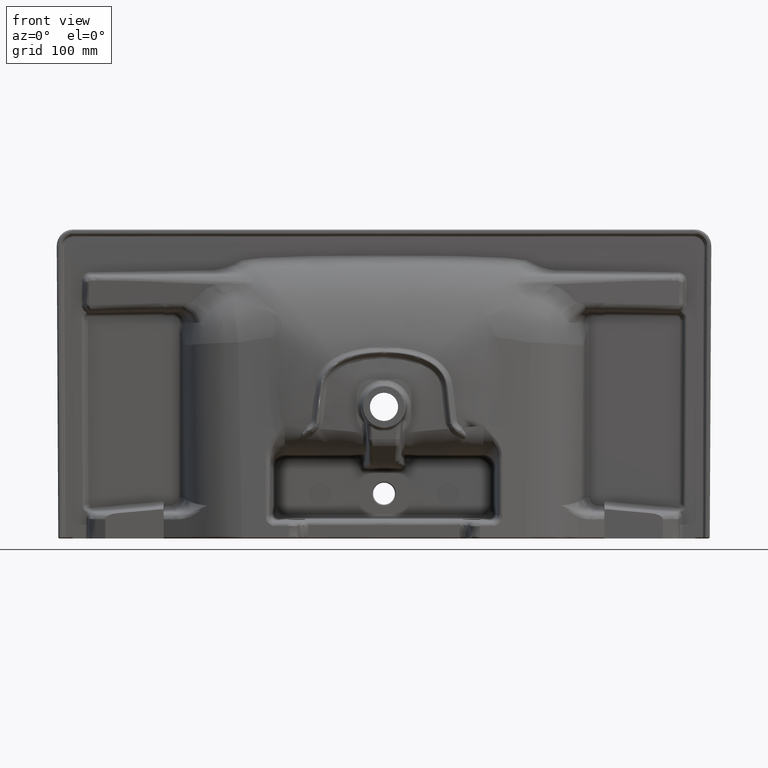
[diagram: clean part render]
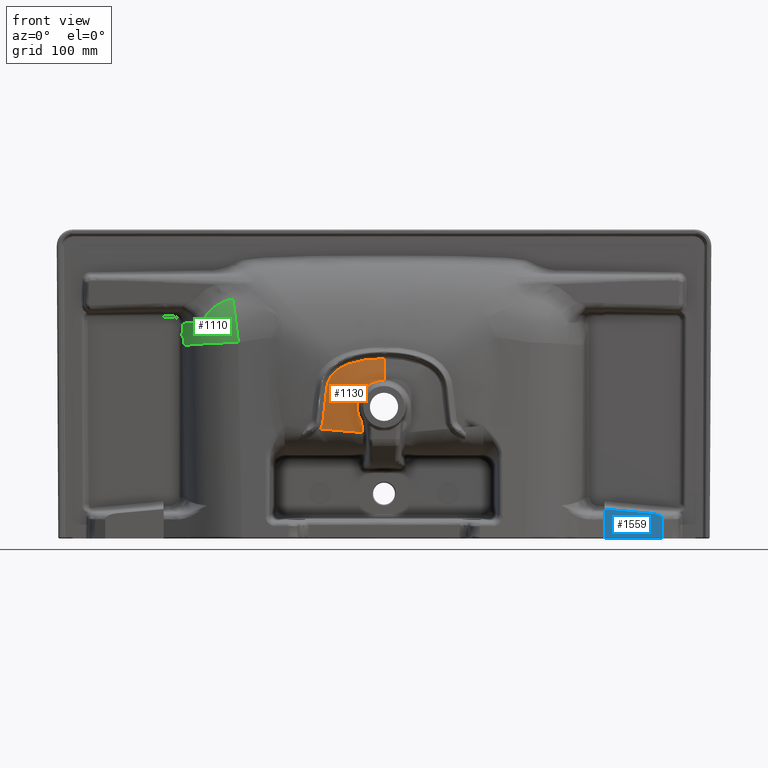
[diagram: same view with three faces highlighted in distinct colors, each labeled with its STEP entity id]
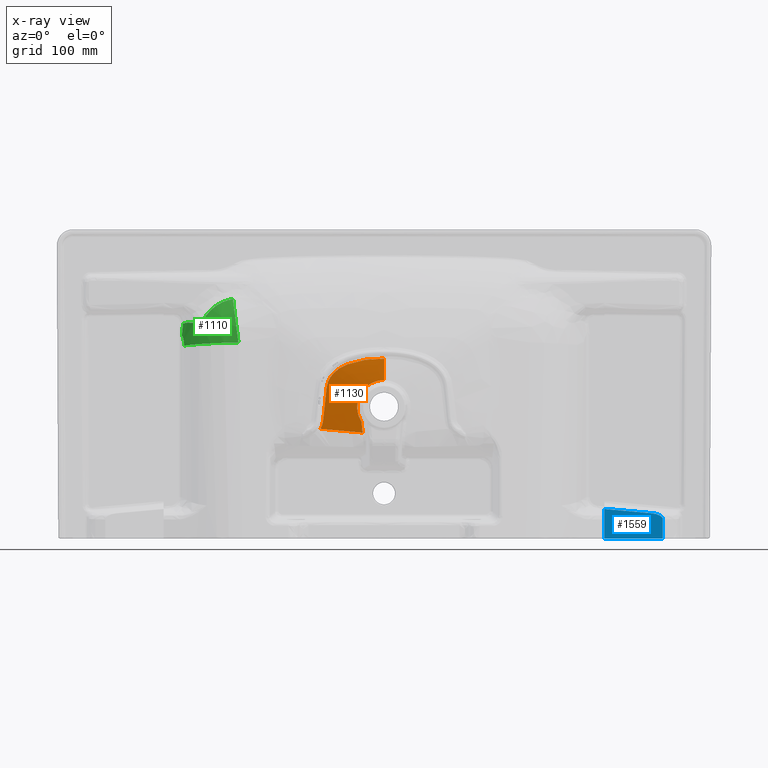
[diagram: x-ray of the same camera — body ghosted, the three highlighted faces saturated]
A machine part, front view with three faces highlighted in distinct colors.
The next image is the same camera in x-ray (body ghosted, the three faces saturated) — at least one of them is partly hidden behind the body in this view.
Their STEP definitions:

[orange] entity #1130 — the highlighted face is a freeform B-spline surface patch.
#120=B_SPLINE_SURFACE_WITH_KNOTS('',3,3,((#23210,#23211,#23212,#23213,#23214,
#23215,#23216,#23217,#23218,#23219,#23220,#23221,#23222),(#23223,#23224,
#23225,#23226,#23227,#23228,#23229,#23230,#23231,#23232,#23233,#23234,#23235),
(#23236,#23237,#23238,#23239,#23240,#23241,#23242,#23243,#23244,#23245,
#23246,#23247,#23248),(#23249,#23250,#23251,#23252,#23253,#23254,#23255,
#23256,#23257,#23258,#23259,#23260,#23261),(#23262,#23263,#23264,#23265,
#23266,#23267,#23268,#23269,#23270,#23271,#23272,#23273,#23274),(#23275,
#23276,#23277,#23278,#23279,#23280,#23281,#23282,#23283,#23284,#23285,#23286,
#23287),(#23288,#23289,#23290,#23291,#23292,#23293,#23294,#23295,#23296,
#23297,#23298,#23299,#23300),(#23301,#23302,#23303,#23304,#23305,#23306,
#23307,#23308,#23309,#23310,#23311,#23312,#23313),(#23314,#23315,#23316,
#23317,#23318,#23319,#23320,#23321,#23322,#23323,#23324,#23325,#23326),
(#23327,#23328,#23329,#23330,#23331,#23332,#23333,#23334,#23335,#23336,
#23337,#23338,#23339),(#23340,#23341,#23342,#23343,#23344,#23345,#23346,
#23347,#23348,#23349,#23350,#23351,#23352),(#23353,#23354,#23355,#23356,
#23357,#23358,#23359,#23360,#23361,#23362,#23363,#23364,#23365),(#23366,
#23367,#23368,#23369,#23370,#23371,#23372,#23373,#23374,#23375,#23376,#23377,
#23378),(#23379,#23380,#23381,#23382,#23383,#23384,#23385,#23386,#23387,
#23388,#23389,#23390,#23391),(#23392,#23393,#23394,#23395,#23396,#23397,
#23398,#23399,#23400,#23401,#23402,#23403,#23404),(#23405,#23406,#23407,
#23408,#23409,#23410,#23411,#23412,#23413,#23414,#23415,#23416,#23417),
(#23418,#23419,#23420,#23421,#23422,#23423,#23424,#23425,#23426,#23427,
#23428,#23429,#23430),(#23431,#23432,#23433,#23434,#23435,#23436,#23437,
#23438,#23439,#23440,#23441,#23442,#23443),(#23444,#23445,#23446,#23447,
#23448,#23449,#23450,#23451,#23452,#23453,#23454,#23455,#23456),(#23457,
#23458,#23459,#23460,#23461,#23462,#23463,#23464,#23465,#23466,#23467,#23468,
#23469),(#23470,#23471,#23472,#23473,#23474,#23475,#23476,#23477,#23478,
#23479,#23480,#23481,#23482),(#23483,#23484,#23485,#23486,#23487,#23488,
#23489,#23490,#23491,#23492,#23493,#23494,#23495),(#23496,#23497,#23498,
#23499,#23500,#23501,#23502,#23503,#23504,#23505,#23506,#23507,#23508),
(#23509,#23510,#23511,#23512,#23513,#23514,#23515,#23516,#23517,#23518,
#23519,#23520,#23521),(#23522,#23523,#23524,#23525,#23526,#23527,#23528,
#23529,#23530,#23531,#23532,#23533,#23534),(#23535,#23536,#23537,#23538,
#23539,#23540,#23541,#23542,#23543,#23544,#23545,#23546,#23547),(#23548,
#23549,#23550,#23551,#23552,#23553,#23554,#23555,#23556,#23557,#23558,#23559,
#23560),(#23561,#23562,#23563,#23564,#23565,#23566,#23567,#23568,#23569,
#23570,#23571,#23572,#23573),(#23574,#23575,#23576,#23577,#23578,#23579,
#23580,#23581,#23582,#23583,#23584,#23585,#23586),(#23587,#23588,#23589,
#23590,#23591,#23592,#23593,#23594,#23595,#23596,#23597,#23598,#23599),
(#23600,#23601,#23602,#23603,#23604,#23605,#23606,#23607,#23608,#23609,
#23610,#23611,#23612),(#23613,#23614,#23615,#23616,#23617,#23618,#23619,
#23620,#23621,#23622,#23623,#23624,#23625),(#23626,#23627,#23628,#23629,
#23630,#23631,#23632,#23633,#23634,#23635,#23636,#23637,#23638),(#23639,
#23640,#23641,#23642,#23643,#23644,#23645,#23646,#23647,#23648,#23649,#23650,
#23651),(#23652,#23653,#23654,#23655,#23656,#23657,#23658,#23659,#23660,
#23661,#23662,#23663,#23664),(#23665,#23666,#23667,#23668,#23669,#23670,
#23671,#23672,#23673,#23674,#23675,#23676,#23677),(#23678,#23679,#23680,
#23681,#23682,#23683,#23684,#23685,#23686,#23687,#23688,#23689,#23690),
(#23691,#23692,#23693,#23694,#23695,#23696,#23697,#23698,#23699,#23700,
#23701,#23702,#23703),(#23704,#23705,#23706,#23707,#23708,#23709,#23710,
#23711,#23712,#23713,#23714,#23715,#23716),(#23717,#23718,#23719,#23720,
#23721,#23722,#23723,#23724,#23725,#23726,#23727,#23728,#23729),(#23730,
#23731,#23732,#23733,#23734,#23735,#23736,#23737,#23738,#23739,#23740,#23741,
#23742),(#23743,#23744,#23745,#23746,#23747,#23748,#23749,#23750,#23751,
#23752,#23753,#23754,#23755),(#23756,#23757,#23758,#23759,#23760,#23761,
#23762,#23763,#23764,#23765,#23766,#23767,#23768),(#23769,#23770,#23771,
#23772,#23773,#23774,#23775,#23776,#23777,#23778,#23779,#23780,#23781),
(#23782,#23783,#23784,#23785,#23786,#23787,#23788,#23789,#23790,#23791,
#23792,#23793,#23794),(#23795,#23796,#23797,#23798,#23799,#23800,#23801,
#23802,#23803,#23804,#23805,#23806,#23807),(#23808,#23809,#23810,#23811,
#23812,#23813,#23814,#23815,#23816,#23817,#23818,#23819,#23820),(#23821,
#23822,#23823,#23824,#23825,#23826,#23827,#23828,#23829,#23830,#23831,#23832,
#23833),(#23834,#23835,#23836,#23837,#23838,#23839,#23840,#23841,#23842,
#23843,#23844,#23845,#23846),(#23847,#23848,#23849,#23850,#23851,#23852,
#23853,#23854,#23855,#23856,#23857,#23858,#23859),(#23860,#23861,#23862,
#23863,#23864,#23865,#23866,#23867,#23868,#23869,#23870,#23871,#23872),
(#23873,#23874,#23875,#23876,#23877,#23878,#23879,#23880,#23881,#23882,
#23883,#23884,#23885),(#23886,#23887,#23888,#23889,#23890,#23891,#23892,
#23893,#23894,#23895,#23896,#23897,#23898),(#23899,#23900,#23901,#23902,
#23903,#23904,#23905,#23906,#23907,#23908,#23909,#23910,#23911),(#23912,
#23913,#23914,#23915,#23916,#23917,#23918,#23919,#23920,#23921,#23922,#23923,
#23924),(#23925,#23926,#23927,#23928,#23929,#23930,#23931,#23932,#23933,
#23934,#23935,#23936,#23937),(#23938,#23939,#23940,#23941,#23942,#23943,
#23944,#23945,#23946,#23947,#23948,#23949,#23950),(#23951,#23952,#23953,
#23954,#23955,#23956,#23957,#23958,#23959,#23960,#23961,#23962,#23963),
(#23964,#23965,#23966,#23967,#23968,#23969,#23970,#23971,#23972,#23973,
#23974,#23975,#23976),(#23977,#23978,#23979,#23980,#23981,#23982,#23983,
#23984,#23985,#23986,#23987,#23988,#23989),(#23990,#23991,#23992,#23993,
#23994,#23995,#23996,#23997,#23998,#23999,#24000,#24001,#24002),(#24003,
#24004,#24005,#24006,#24007,#24008,#24009,#24010,#24011,#24012,#24013,#24014,
#24015),(#24016,#24017,#24018,#24019,#24020,#24021,#24022,#24023,#24024,
#24025,#24026,#24027,#24028),(#24029,#24030,#24031,#24032,#24033,#24034,
#24035,#24036,#24037,#24038,#24039,#24040,#24041),(#24042,#24043,#24044,
#24045,#24046,#24047,#24048,#24049,#24050,#24051,#24052,#24053,#24054),
(#24055,#24056,#24057,#24058,#24059,#24060,#24061,#24062,#24063,#24064,
#24065,#24066,#24067),(#24068,#24069,#24070,#24071,#24072,#24073,#24074,
#24075,#24076,#24077,#24078,#24079,#24080)),.UNSPECIFIED.,.F.,.F.,.F.,(4,
3,3,3,3,3,3,3,3,3,3,3,3,3,3,3,3,3,3,3,3,3,4),(4,3,3,3,4),(0.,0.0625,0.125,
0.1875,0.25,0.28125,0.296875,0.3125,0.34375,0.375,0.40625,0.4375,0.46875,
0.5,0.53125,0.5625,0.625,0.6875,0.75,0.8125,0.875,0.9375,1.),(0.,0.25,0.5,
0.75,1.),.UNSPECIFIED.);
#1130=ADVANCED_FACE('',(#1728),#120,.T.);
#1728=FACE_OUTER_BOUND('',#2310,.T.);
#2310=EDGE_LOOP('',(#4355,#4356,#4357,#4358,#4359,#4360));
#2845=B_SPLINE_CURVE_WITH_KNOTS('',3,(#11501,#11502,#11503,#11504,#11505,
#11506,#11507),.UNSPECIFIED.,.F.,.F.,(4,3,4),(0.,0.738351309884634,1.),
 .UNSPECIFIED.);
#2847=B_SPLINE_CURVE_WITH_KNOTS('',3,(#11527,#11528,#11529,#11530),
 .UNSPECIFIED.,.F.,.F.,(4,4),(0.,1.),.UNSPECIFIED.);
#2850=B_SPLINE_CURVE_WITH_KNOTS('',3,(#11555,#11556,#11557,#11558,#11559,
#11560,#11561,#11562,#11563,#11564,#11565,#11566,#11567,#11568,#11569,#11570,
#11571,#11572),.UNSPECIFIED.,.F.,.F.,(4,2,2,2,2,2,2,2,4),(0.,0.125,0.25,
0.375,0.5,0.625,0.75,0.875,1.),.UNSPECIFIED.);
#3021=B_SPLINE_CURVE_WITH_KNOTS('',3,(#14916,#14917,#14918,#14919,#14920,
#14921,#14922,#14923,#14924,#14925,#14926,#14927,#14928,#14929,#14930,#14931,
#14932,#14933,#14934,#14935,#14936,#14937,#14938,#14939,#14940,#14941,#14942,
#14943,#14944,#14945),.UNSPECIFIED.,.F.,.F.,(4,2,2,2,2,2,2,2,2,2,2,2,2,
2,4),(0.,0.0625,0.125,0.1875,0.25,0.3125,0.375,0.4375,0.5,0.5625,0.625,
0.6875,0.75,0.875,1.),.UNSPECIFIED.);
#3035=B_SPLINE_CURVE_WITH_KNOTS('',3,(#15868,#15869,#15870,#15871,#15872,
#15873,#15874,#15875,#15876,#15877,#15878,#15879,#15880,#15881,#15882,#15883,
#15884,#15885,#15886,#15887,#15888,#15889),.UNSPECIFIED.,.F.,.F.,(4,2,2,
2,2,2,2,2,2,2,4),(0.,0.249999999999999,0.374999999999998,0.437499999999998,
0.499999999999998,0.624999999999998,0.749999999999998,0.781249999999998,
0.812499999999999,0.874999999999999,1.),.UNSPECIFIED.);
#3039=B_SPLINE_CURVE_WITH_KNOTS('',3,(#23206,#23207,#23208,#23209),
 .UNSPECIFIED.,.F.,.F.,(4,4),(0.,1.),.UNSPECIFIED.);
#4355=ORIENTED_EDGE('',*,*,#7571,.F.);
#4356=ORIENTED_EDGE('',*,*,#7307,.T.);
#4357=ORIENTED_EDGE('',*,*,#7310,.T.);
#4358=ORIENTED_EDGE('',*,*,#7313,.T.);
#4359=ORIENTED_EDGE('',*,*,#7575,.F.);
#4360=ORIENTED_EDGE('',*,*,#7556,.T.);
#6512=VERTEX_POINT('',#11423);
#6514=VERTEX_POINT('',#11500);
#6516=VERTEX_POINT('',#11526);
#6518=VERTEX_POINT('',#11554);
#6584=VERTEX_POINT('',#13040);
#6672=VERTEX_POINT('',#14905);
#7307=EDGE_CURVE('',#6512,#6514,#2845,.T.);
#7310=EDGE_CURVE('',#6514,#6516,#2847,.T.);
#7313=EDGE_CURVE('',#6516,#6518,#2850,.T.);
#7556=EDGE_CURVE('',#6672,#6584,#3021,.T.);
#7571=EDGE_CURVE('',#6512,#6584,#3035,.T.);
#7575=EDGE_CURVE('',#6672,#6518,#3039,.T.);
#11423=CARTESIAN_POINT('',(-38.1885286991552,-150.019434058867,-69.6771500375707));
#11500=CARTESIAN_POINT('',(-39.6464191055672,-150.463206674838,-53.4961348913573));
#11501=CARTESIAN_POINT('',(-38.1885885057867,-150.019407491264,-69.6772240723498));
#11502=CARTESIAN_POINT('',(-38.5419907869102,-150.161910277094,-65.6953400702492));
#11503=CARTESIAN_POINT('',(-38.8976122492264,-150.281531203478,-61.7127393621009));
#11504=CARTESIAN_POINT('',(-39.2596469402433,-150.374224023199,-57.7301598781321));
#11505=CARTESIAN_POINT('',(-39.387943137607,-150.407072080549,-56.3188315823362));
#11506=CARTESIAN_POINT('',(-39.5168827777095,-150.436677768308,-54.9074828373038));
#11507=CARTESIAN_POINT('',(-39.6464191055674,-150.463206674838,-53.4961348913573));
#11526=CARTESIAN_POINT('',(-40.3751863922356,-150.488933433004,-51.3391297763247));
#11527=CARTESIAN_POINT('',(-39.6464191055672,-150.463206674838,-53.4961348913573));
#11528=CARTESIAN_POINT('',(-39.716934653281,-150.477648186383,-52.7278409689578));
#11529=CARTESIAN_POINT('',(-39.9654772997083,-150.486367448156,-51.9929891168533));
#11530=CARTESIAN_POINT('',(-40.3751863922362,-150.488933433004,-51.3391297763251));
#11554=CARTESIAN_POINT('',(-3.99999999999998,-149.947441022427,13.9323161546407));
#11555=CARTESIAN_POINT('',(-40.3751863922356,-150.488933433004,-51.3391297763247));
#11556=CARTESIAN_POINT('',(-42.4093607542241,-150.501673351852,-48.0927680745555));
#11557=CARTESIAN_POINT('',(-43.9673840718815,-150.509261450875,-44.6505801593434));
#11558=CARTESIAN_POINT('',(-46.1600059313501,-150.517552062092,-37.3864345796791));
#11559=CARTESIAN_POINT('',(-46.7706148986008,-150.518160776924,-33.5818006747198));
#11560=CARTESIAN_POINT('',(-46.9697867133375,-150.512024920875,-26.0297690401374));
#11561=CARTESIAN_POINT('',(-46.5579097341776,-150.507692370948,-22.1797619638828));
#11562=CARTESIAN_POINT('',(-44.7621390385226,-150.493880098195,-14.8352172828852));
#11563=CARTESIAN_POINT('',(-43.3690697719488,-150.485517988304,-11.2606114044297));
#11564=CARTESIAN_POINT('',(-39.6845240601396,-150.462939105777,-4.60710428917668));
#11565=CARTESIAN_POINT('',(-37.4386585329508,-150.450413101122,-1.57150715141552));
#11566=CARTESIAN_POINT('',(-32.0931022078976,-150.385506507075,3.88350193190686));
#11567=CARTESIAN_POINT('',(-29.0743740822453,-150.328762378567,6.20320564870514));
#11568=CARTESIAN_POINT('',(-22.5155927751578,-150.200848423466,9.99244528201075));
#11569=CARTESIAN_POINT('',(-18.9434072429844,-150.124912519576,11.4616453169976));
#11570=CARTESIAN_POINT('',(-11.6432947249195,-150.001735820431,13.413101112708));
#11571=CARTESIAN_POINT('',(-7.8302594297032,-149.952818551196,13.9284107095028));
#11572=CARTESIAN_POINT('',(-3.99999999999995,-149.947441022427,13.9323161546402));
#13040=CARTESIAN_POINT('',(-105.182796216602,-147.584588669578,-63.6698740959205));
#14905=CARTESIAN_POINT('',(-3.99999999999962,-145.623961387151,48.0491522992109));
#14916=CARTESIAN_POINT('',(-3.99999999999968,-145.623961387151,48.0491522992108));
#14917=CARTESIAN_POINT('',(-7.70451517016062,-145.620439962733,48.0594461445299));
#14918=CARTESIAN_POINT('',(-11.4106152958533,-145.613144280094,48.1072637738277));
#14919=CARTESIAN_POINT('',(-18.8096652254648,-145.655856771505,47.8963865840834));
#14920=CARTESIAN_POINT('',(-22.5030461958496,-145.703751571937,47.6476980435126));
#14921=CARTESIAN_POINT('',(-29.8782595671848,-145.844477998004,46.8801433731126));
#14922=CARTESIAN_POINT('',(-33.5596831410965,-145.937509972146,46.359389783242));
#14923=CARTESIAN_POINT('',(-40.8705877508414,-146.137348943708,45.1892294082476));
#14924=CARTESIAN_POINT('',(-44.495125285204,-146.253324356121,44.484617081489));
#14925=CARTESIAN_POINT('',(-51.6480787534386,-146.526459115939,42.7024705476967));
#14926=CARTESIAN_POINT('',(-55.1820337006098,-146.681215473467,41.6464216713753));
#14927=CARTESIAN_POINT('',(-62.1563041577062,-147.003409486022,39.1670528721105));
#14928=CARTESIAN_POINT('',(-65.6187160200763,-147.189818142113,37.7316477588371));
#14929=CARTESIAN_POINT('',(-72.2526979144878,-147.444581335288,34.4121844378187));
#14930=CARTESIAN_POINT('',(-75.4230575612073,-147.490027719616,32.5101557047421));
#14931=CARTESIAN_POINT('',(-81.3503388582383,-147.542817121101,28.0305459142119));
#14932=CARTESIAN_POINT('',(-84.0983384122821,-147.536448059452,25.4287696440396));
#14933=CARTESIAN_POINT('',(-88.7824775196265,-147.521752962148,19.6802519075254));
#14934=CARTESIAN_POINT('',(-90.8180995801755,-147.523526347393,16.4682554255293));
#14935=CARTESIAN_POINT('',(-93.7500565090792,-147.57428270032,9.66599052156952));
#14936=CARTESIAN_POINT('',(-94.6292942157935,-147.629041146038,6.05779743733356));
#14937=CARTESIAN_POINT('',(-95.7854532987451,-147.775797285382,-1.32716650187598));
#14938=CARTESIAN_POINT('',(-96.0703735911185,-147.857870477411,-5.05157958182566));
#14939=CARTESIAN_POINT('',(-96.7886626283352,-147.988729321513,-12.4846719953935));
#14940=CARTESIAN_POINT('',(-97.2604522342516,-148.034469248406,-16.1891952325954));
#14941=CARTESIAN_POINT('',(-98.4007252387525,-148.139758360926,-27.3333328301484));
#14942=CARTESIAN_POINT('',(-99.2999293587925,-148.13593136441,-34.7487327677439));
#14943=CARTESIAN_POINT('',(-100.570964941798,-148.059477464556,-49.6338141702491));
#14944=CARTESIAN_POINT('',(-101.404871976189,-147.949757123291,-57.1425101605558));
#14945=CARTESIAN_POINT('',(-105.18264335333,-147.584622781297,-63.6696473769916));
#15868=CARTESIAN_POINT('',(-38.1885215134376,-150.019459950418,-69.6770709974481));
#15869=CARTESIAN_POINT('',(-43.7703250049643,-149.947662436093,-69.1452707000389));
#15870=CARTESIAN_POINT('',(-49.2292928803738,-149.853498551398,-68.6314956344026));
#15871=CARTESIAN_POINT('',(-57.5079260999385,-149.67075270883,-67.8833356577116));
#15872=CARTESIAN_POINT('',(-60.3080864427051,-149.602150269307,-67.6363435159249));
#15873=CARTESIAN_POINT('',(-64.5738803779602,-149.485206085765,-67.2681679528867));
#15874=CARTESIAN_POINT('',(-66.006819218285,-149.443883642136,-67.1458312013274));
#15875=CARTESIAN_POINT('',(-68.8969580655333,-149.355968836842,-66.9015284432657));
#15876=CARTESIAN_POINT('',(-70.222061301676,-149.313816045834,-66.7803598761297));
#15877=CARTESIAN_POINT('',(-74.2904028332622,-149.178074966718,-66.4164195133499));
#15878=CARTESIAN_POINT('',(-77.0621166112142,-149.077026195185,-66.1736950492794));
#15879=CARTESIAN_POINT('',(-82.7333493441957,-148.84731278843,-65.6854322638077));
#15880=CARTESIAN_POINT('',(-85.6786327567178,-148.716178800036,-65.4402309967731));
#15881=CARTESIAN_POINT('',(-89.3140441616008,-148.536253974386,-65.1289921784781));
#15882=CARTESIAN_POINT('',(-89.9620726964534,-148.503511276801,-65.0668305141937));
#15883=CARTESIAN_POINT('',(-91.3076502606347,-148.43393792473,-64.9420699871667));
#15884=CARTESIAN_POINT('',(-91.9833215520151,-148.398206055351,-64.8795307502348));
#15885=CARTESIAN_POINT('',(-94.0187775903837,-148.288065303634,-64.6914285003889));
#15886=CARTESIAN_POINT('',(-95.3870288959056,-148.210709017523,-64.5653812283985));
#15887=CARTESIAN_POINT('',(-99.5234464603576,-147.965950084725,-64.18525348661));
#15888=CARTESIAN_POINT('',(-102.337780483842,-147.784878328869,-63.9290594378909));
#15889=CARTESIAN_POINT('',(-105.182816262559,-147.584563910213,-63.6701129319836));
#23206=CARTESIAN_POINT('',(-3.99999999999996,-145.623961387151,48.0491522992109));
#23207=CARTESIAN_POINT('',(-3.99999999999996,-147.541337631158,36.733054132447));
#23208=CARTESIAN_POINT('',(-3.99999999999994,-148.909508842677,25.3521647447788));
#23209=CARTESIAN_POINT('',(-3.99999999999994,-149.947441022427,13.9323161546406));
#23210=CARTESIAN_POINT('',(2.19250975235809,-145.567073676076,48.4068335660013));
#23211=CARTESIAN_POINT('',(1.67026771315906,-146.223130401062,44.5510707807125));
#23212=CARTESIAN_POINT('',(1.14219445353543,-146.804911903034,40.8095726864083));
#23213=CARTESIAN_POINT('',(0.601994038933233,-147.309615896913,37.2066888217149));
#23214=CARTESIAN_POINT('',(0.0617936243310307,-147.814319890792,33.6038049570214));
#23215=CARTESIAN_POINT('',(-0.488595749622979,-148.244400383235,30.1468814485599));
#23216=CARTESIAN_POINT('',(-1.04081922068956,-148.627223708287,26.8116649853001));
#23217=CARTESIAN_POINT('',(-1.59304269175615,-149.010047033339,23.4764485220404));
#23218=CARTESIAN_POINT('',(-2.14679209849493,-149.34633772041,20.2494285479739));
#23219=CARTESIAN_POINT('',(-2.68841937524663,-149.650042031397,17.0969548752524));
#23220=CARTESIAN_POINT('',(-3.23004665199834,-149.953746342384,13.9444812025309));
#23221=CARTESIAN_POINT('',(-3.75508156904828,-150.223014072389,10.8627338563856));
#23222=CARTESIAN_POINT('',(-4.25784444584058,-150.47573209469,7.83349378236804));
#23223=CARTESIAN_POINT('',(-3.59328701397308,-145.56802007705,48.3784490451091));
#23224=CARTESIAN_POINT('',(-3.81894364640475,-146.22373742403,44.5260435980525));
#23225=CARTESIAN_POINT('',(-4.04690846881371,-146.805205587721,40.788875652497));
#23226=CARTESIAN_POINT('',(-4.28005776071548,-147.309551227583,37.1916590483107));
#23227=CARTESIAN_POINT('',(-4.51320705261726,-147.813896867445,33.5944424441244));
#23228=CARTESIAN_POINT('',(-4.75070966916223,-148.243589480848,30.1446799486952));
#23229=CARTESIAN_POINT('',(-4.98844394569209,-148.626163895,26.8185000073907));
#23230=CARTESIAN_POINT('',(-5.22617822222195,-149.008738309151,23.4923200660861));
#23231=CARTESIAN_POINT('',(-5.46404422872809,-149.344933359513,20.2760144802405));
#23232=CARTESIAN_POINT('',(-5.6954708522751,-149.648662562495,17.136398979632));
#23233=CARTESIAN_POINT('',(-5.92689747582212,-149.952391765478,13.9967834790235));
#23234=CARTESIAN_POINT('',(-6.15011626198888,-150.221819681438,10.9305863333803));
#23235=CARTESIAN_POINT('',(-6.36013328250749,-150.474751220186,7.91882363457105));
#23236=CARTESIAN_POINT('',(-9.36659316989704,-145.568899538056,48.3559810874404));
#23237=CARTESIAN_POINT('',(-9.29653131635923,-146.224317901277,44.5065709082143));
#23238=CARTESIAN_POINT('',(-9.22582693870877,-146.805502502504,40.7732765245446));
#23239=CARTESIAN_POINT('',(-9.15355612531836,-147.309524475855,37.1811183870456));
#23240=CARTESIAN_POINT('',(-9.08128531192795,-147.813546449205,33.5889602495466));
#23241=CARTESIAN_POINT('',(-9.00769957033256,-148.242888009561,30.1455736857555));
#23242=CARTESIAN_POINT('',(-8.9341581210131,-148.625222685267,26.8275040289103));
#23243=CARTESIAN_POINT('',(-8.86061667169363,-149.007557360973,23.5094343720651));
#23244=CARTESIAN_POINT('',(-8.7871530299276,-149.343636568689,20.3027961803155));
#23245=CARTESIAN_POINT('',(-8.71594672921251,-149.647352120866,17.1748975172472));
#23246=CARTESIAN_POINT('',(-8.64474042849742,-149.951067673043,14.0469988541788));
#23247=CARTESIAN_POINT('',(-8.57634471511789,-150.220594212035,10.9949835863208));
#23248=CARTESIAN_POINT('',(-8.51272864178803,-150.473705571285,7.99964265522707));
#23249=CARTESIAN_POINT('',(-15.1463436979719,-145.56733213374,48.3976626108961));
#23250=CARTESIAN_POINT('',(-14.7803225183362,-146.223300457371,44.5427172536336));
#23251=CARTESIAN_POINT('',(-14.4105277429581,-146.804992033538,40.8022957476738));
#23252=CARTESIAN_POINT('',(-14.0322770462478,-147.309600816322,37.2008374471996));
#23253=CARTESIAN_POINT('',(-13.6540263495375,-147.814209599105,33.5993791467253));
#23254=CARTESIAN_POINT('',(-13.2686817499675,-148.244193067363,30.1442625764958));
#23255=CARTESIAN_POINT('',(-12.8829092268431,-148.626960758901,26.8112975961004));
#23256=CARTESIAN_POINT('',(-12.4971367037187,-149.009728450438,23.4783326157051));
#23257=CARTESIAN_POINT('',(-12.1110846505625,-149.346008372867,20.2539640603699));
#23258=CARTESIAN_POINT('',(-11.7353578029631,-149.64973278202,17.1046264012374));
#23259=CARTESIAN_POINT('',(-11.3596309553638,-149.953457191173,13.9552887421049));
#23260=CARTESIAN_POINT('',(-10.9970604644414,-150.222782790835,10.8773402356714));
#23261=CARTESIAN_POINT('',(-10.6557171558137,-150.475540090958,7.85213941365263));
#23262=CARTESIAN_POINT('',(-20.9260942260467,-145.565764729425,48.4393441343517));
#23263=CARTESIAN_POINT('',(-20.2641137203131,-146.222283013465,44.5788635990529));
#23264=CARTESIAN_POINT('',(-19.5952285472075,-146.804481564573,40.831314970803));
#23265=CARTESIAN_POINT('',(-18.9109979671773,-147.309677156789,37.2205565073536));
#23266=CARTESIAN_POINT('',(-18.2267673871471,-147.814872749004,33.6097980439041));
#23267=CARTESIAN_POINT('',(-17.5296639296025,-148.245498125166,30.142951467236));
#23268=CARTESIAN_POINT('',(-16.8316603326731,-148.628698832534,26.7950911632906));
#23269=CARTESIAN_POINT('',(-16.1336567357437,-149.011899539903,23.4472308593452));
#23270=CARTESIAN_POINT('',(-15.4350162711973,-149.348380177045,20.2051319404244));
#23271=CARTESIAN_POINT('',(-14.7547688767138,-149.652113443174,17.0343552852276));
#23272=CARTESIAN_POINT('',(-14.0745214822302,-149.955846709304,13.8635786300309));
#23273=CARTESIAN_POINT('',(-13.4177762137649,-150.224971369635,10.759696885022));
#23274=CARTESIAN_POINT('',(-12.7987056698393,-150.477374610632,7.7046361720782));
#23275=CARTESIAN_POINT('',(-26.7130058599104,-145.562510367384,48.5232484809036));
#23276=CARTESIAN_POINT('',(-25.7546973236492,-146.220201660912,44.6506968333541));
#23277=CARTESIAN_POINT('',(-24.7861206122393,-146.803486662974,40.8876262007706));
#23278=CARTESIAN_POINT('',(-23.7951136226479,-147.309941154666,37.2566497121485));
#23279=CARTESIAN_POINT('',(-22.8041066330565,-147.816395646358,33.6256732235263));
#23280=CARTESIAN_POINT('',(-21.7942814597224,-148.248400903386,30.1333605680418));
#23281=CARTESIAN_POINT('',(-20.7826672092473,-148.632529397246,26.7532374410125));
#23282=CARTESIAN_POINT('',(-19.7710529587723,-149.016657891107,23.3731143139831));
#23283=CARTESIAN_POINT('',(-18.7580233714748,-149.353561655887,20.0926747492759));
#23284=CARTESIAN_POINT('',(-17.7705150819644,-149.657293056363,16.8756935719841));
#23285=CARTESIAN_POINT('',(-16.7830067924541,-149.961024456839,13.6587123946923));
#23286=CARTESIAN_POINT('',(-15.8283859146981,-150.229676989163,10.4991007254247));
#23287=CARTESIAN_POINT('',(-14.9253672555555,-150.481270494776,7.38017377550754));
#23288=CARTESIAN_POINT('',(-32.5144482862467,-145.558613232406,48.6090719957812));
#23289=CARTESIAN_POINT('',(-31.2585387481496,-146.217870473011,44.7188105415215));
#23290=CARTESIAN_POINT('',(-29.9884167895141,-146.802607373676,40.9331271804082));
#23291=CARTESIAN_POINT('',(-28.6881505482757,-147.310761009716,37.2729645635096));
#23292=CARTESIAN_POINT('',(-27.3878843070373,-147.818914645756,33.6128019466109));
#23293=CARTESIAN_POINT('',(-26.0622361391654,-148.252793168139,30.0839645893191));
#23294=CARTESIAN_POINT('',(-24.7327885425274,-148.638112937645,26.658207023707));
#23295=CARTESIAN_POINT('',(-23.4033409458894,-149.023432707151,23.232449458095));
#23296=CARTESIAN_POINT('',(-22.0705920351481,-149.360774049668,19.8982672357092));
#23297=CARTESIAN_POINT('',(-20.7686016348149,-149.664290730552,16.6175183507876));
#23298=CARTESIAN_POINT('',(-19.4666112344817,-149.967807411435,13.336769465866));
#23299=CARTESIAN_POINT('',(-18.2047765240381,-150.235505213948,10.1012452469602));
#23300=CARTESIAN_POINT('',(-17.0051724254931,-150.485693682641,6.896725466575));
#23301=CARTESIAN_POINT('',(-38.315890712583,-145.554716097429,48.6948955106587));
#23302=CARTESIAN_POINT('',(-36.76238017265,-146.21553928511,44.7869242496888));
#23303=CARTESIAN_POINT('',(-35.1907129667889,-146.801728084379,40.9786281600459));
#23304=CARTESIAN_POINT('',(-33.5811874739035,-147.311580864767,37.2892794148707));
#23305=CARTESIAN_POINT('',(-31.971661981018,-147.821433645154,33.5999306696955));
#23306=CARTESIAN_POINT('',(-30.3301908186084,-148.257185432893,30.0345686105964));
#23307=CARTESIAN_POINT('',(-28.6829098758075,-148.643696478043,26.5631766064016));
#23308=CARTESIAN_POINT('',(-27.0356289330065,-149.030207523194,23.0917846022068));
#23309=CARTESIAN_POINT('',(-25.3831606988213,-149.367986443448,19.7038597221425));
#23310=CARTESIAN_POINT('',(-23.7666881876654,-149.67128840474,16.3593431295911));
#23311=CARTESIAN_POINT('',(-22.1502156765094,-149.974590366032,13.0148265370398));
#23312=CARTESIAN_POINT('',(-20.5811671333781,-150.241333438733,9.70338976849576));
#23313=CARTESIAN_POINT('',(-19.0849775954306,-150.490116870505,6.41327715764247));
#23314=CARTESIAN_POINT('',(-44.1318875367116,-145.550184715573,48.782603350033));
#23315=CARTESIAN_POINT('',(-42.2795018571971,-146.212967466005,44.851278535578));
#23316=CARTESIAN_POINT('',(-40.4044341833263,-146.800973580427,41.0132747812145));
#23317=CARTESIAN_POINT('',(-38.4831620935179,-147.312964450897,37.2857733414319));
#23318=CARTESIAN_POINT('',(-36.5618900037094,-147.824955321366,33.5582719016492));
#23319=CARTESIAN_POINT('',(-34.6014854214951,-148.263071014685,29.9453334673434));
#23320=CARTESIAN_POINT('',(-32.632134083161,-148.651028697247,26.4149758991632));
#23321=CARTESIAN_POINT('',(-30.6627827448269,-149.03898637981,22.884618330983));
#23322=CARTESIAN_POINT('',(-28.6852418035621,-149.377203770329,19.4276237091512));
#23323=CARTESIAN_POINT('',(-26.7470775855617,-149.680063138743,16.0019079720964));
#23324=CARTESIAN_POINT('',(-24.8089133675612,-149.982922507158,12.5761922350417));
#23325=CARTESIAN_POINT('',(-22.9233433844584,-150.248212611288,9.16886302150822));
#23326=CARTESIAN_POINT('',(-21.1182393438642,-150.494994386573,5.77162528690872));
#23327=CARTESIAN_POINT('',(-49.9695343224683,-145.545953160059,48.8322543071471));
#23328=CARTESIAN_POINT('',(-47.8160254507552,-146.210827968807,44.8729733427177));
#23329=CARTESIAN_POINT('',(-45.6343922754986,-146.800778729087,40.9996295499538));
#23330=CARTESIAN_POINT('',(-43.3971501312001,-147.315091685231,37.2271586876081));
#23331=CARTESIAN_POINT('',(-41.1599079869016,-147.829404641376,33.4546878252622));
#23332=CARTESIAN_POINT('',(-38.8752522452701,-148.270097828408,29.7860836238089));
#23333=CARTESIAN_POINT('',(-36.5768340509456,-148.659522421634,26.187661626811));
#23334=CARTESIAN_POINT('',(-34.278415856621,-149.048947014859,22.5892396298131));
#23335=CARTESIAN_POINT('',(-31.9671550674114,-149.387435363434,19.0532100732258));
#23336=CARTESIAN_POINT('',(-29.6964544115865,-149.689564281693,15.5355298553888));
#23337=CARTESIAN_POINT('',(-27.4257537557616,-149.991693199952,12.0178496375518));
#23338=CARTESIAN_POINT('',(-25.2101982862523,-150.255101522089,8.50291834319666));
#23339=CARTESIAN_POINT('',(-23.080501649936,-150.499466452139,4.98608255313997));
#23340=CARTESIAN_POINT('',(-55.8071811082251,-145.541721604546,48.8819052642612));
#23341=CARTESIAN_POINT('',(-53.3525490443134,-146.208688471609,44.8946681498573));
#23342=CARTESIAN_POINT('',(-50.864350367671,-146.800583877746,40.9859843186932));
#23343=CARTESIAN_POINT('',(-48.3111381688824,-147.317218919566,37.1685440337842));
#23344=CARTESIAN_POINT('',(-45.7579259700938,-147.833853961386,33.3511037488753));
#23345=CARTESIAN_POINT('',(-43.1490190690451,-148.277124642132,29.6268337802743));
#23346=CARTESIAN_POINT('',(-40.5215340187301,-148.668016146021,25.9603473544587));
#23347=CARTESIAN_POINT('',(-37.8940489684152,-149.058907649909,22.2938609286432));
#23348=CARTESIAN_POINT('',(-35.2490683312608,-149.39766695654,18.6787964373004));
#23349=CARTESIAN_POINT('',(-32.6458312376114,-149.699065424643,15.0691517386812));
#23350=CARTESIAN_POINT('',(-30.042594143962,-150.000463892746,11.459507040062));
#23351=CARTESIAN_POINT('',(-27.4970531880462,-150.26199043289,7.83697366488509));
#23352=CARTESIAN_POINT('',(-25.0427639560078,-150.503938517705,4.20053981937122));
#23353=CARTESIAN_POINT('',(-61.6684978400874,-145.537510507826,48.9059946758331));
#23354=CARTESIAN_POINT('',(-58.9090407593753,-146.206620833961,44.8919220756858));
#23355=CARTESIAN_POINT('',(-56.1098661762593,-146.800552950344,40.947064300592));
#23356=CARTESIAN_POINT('',(-53.2355410387871,-147.319693926618,37.0812161989881));
#23357=CARTESIAN_POINT('',(-50.3612159013149,-147.838834902893,33.2153680973842));
#23358=CARTESIAN_POINT('',(-47.4221354903099,-148.284929395899,29.4292945040199));
#23359=CARTESIAN_POINT('',(-44.4582991426677,-148.677357637411,25.6856963697748));
#23360=CARTESIAN_POINT('',(-41.4944627950256,-149.069785878922,21.9420982355297));
#23361=CARTESIAN_POINT('',(-38.5071503435215,-149.408717510489,18.2361648247281));
#23362=CARTESIAN_POINT('',(-35.560839803916,-149.709165824048,14.5196253473495));
#23363=CARTESIAN_POINT('',(-32.6145292643105,-150.009614137606,10.803085869971));
#23364=CARTESIAN_POINT('',(-29.7262091106389,-150.268902513184,7.0541704837402));
#23365=CARTESIAN_POINT('',(-26.9322758290633,-150.508060110105,3.27692885456899));
#23366=CARTESIAN_POINT('',(-67.5615147123647,-145.535691453555,48.7970030850415));
#23367=CARTESIAN_POINT('',(-64.4955895453083,-146.206839457847,44.7496224807112));
#23368=CARTESIAN_POINT('',(-61.3821628812271,-146.802648497847,40.7628546372192));
#23369=CARTESIAN_POINT('',(-58.1815489615967,-147.324124847543,36.8443081063745));
#23370=CARTESIAN_POINT('',(-54.9809350419662,-147.845601197239,32.9257615755298));
#23371=CARTESIAN_POINT('',(-51.7045677657434,-148.294309177245,29.0751145632843));
#23372=CARTESIAN_POINT('',(-48.3948746065325,-148.687960081957,25.2539908181809));
#23373=CARTESIAN_POINT('',(-45.0851814473215,-149.08161098667,21.4328670730776));
#23374=CARTESIAN_POINT('',(-41.7436886908543,-149.420329079516,17.6380118083802));
#23375=CARTESIAN_POINT('',(-38.4398812040564,-149.719498905717,13.8189579233417));
#23376=CARTESIAN_POINT('',(-35.1360737172586,-150.018668731917,9.99990403830322));
#23377=CARTESIAN_POINT('',(-31.8873413869166,-150.275441030971,6.13212827726089));
#23378=CARTESIAN_POINT('',(-28.7343338179802,-150.511645755868,2.22276446361511));
#23379=CARTESIAN_POINT('',(-70.5080231485034,-145.534781926419,48.7425072896456));
#23380=CARTESIAN_POINT('',(-67.2888639382748,-146.20694876979,44.6784726832239));
#23381=CARTESIAN_POINT('',(-64.018311233711,-146.803696271598,40.6707498055328));
#23382=CARTESIAN_POINT('',(-60.6545529230015,-147.326340308005,36.7258540600677));
#23383=CARTESIAN_POINT('',(-57.2907946122919,-147.848984344412,32.7809583146026));
#23384=CARTESIAN_POINT('',(-53.8457839034602,-148.298999067918,28.8980245929165));
#23385=CARTESIAN_POINT('',(-50.3631623384648,-148.693261304231,25.038138042384));
#23386=CARTESIAN_POINT('',(-46.8805407734694,-149.087523540544,21.1782514918515));
#23387=CARTESIAN_POINT('',(-43.3619578645207,-149.42613486403,17.3389353002063));
#23388=CARTESIAN_POINT('',(-39.8794019041267,-149.724665446551,13.4686242113378));
#23389=CARTESIAN_POINT('',(-36.3968459437327,-150.023196029073,9.59831312246934));
#23390=CARTESIAN_POINT('',(-32.9679075250554,-150.278710289864,5.67110717402124));
#23391=CARTESIAN_POINT('',(-29.6353628124386,-150.51343857875,1.69568226813817));
#23392=CARTESIAN_POINT('',(-73.4500504855065,-145.532244657161,48.7024603302816));
#23393=CARTESIAN_POINT('',(-70.0771466388655,-146.205523382821,44.6201160204165));
#23394=CARTESIAN_POINT('',(-66.6488477246659,-146.803334524725,40.5895205410615));
#23395=CARTESIAN_POINT('',(-63.1211864544609,-147.327311768609,36.6157719984122));
#23396=CARTESIAN_POINT('',(-59.5935251842559,-147.851289012493,32.6420234557628));
#23397=CARTESIAN_POINT('',(-55.9789146151935,-148.302804782235,28.7237118045913));
#23398=CARTESIAN_POINT('',(-52.3220520683342,-148.697845708433,24.8213958835061));
#23399=CARTESIAN_POINT('',(-48.6651895214749,-149.09288663463,20.9190799624209));
#23400=CARTESIAN_POINT('',(-44.9678485201774,-149.431539223668,17.0310333338741));
#23401=CARTESIAN_POINT('',(-41.3043354500403,-149.729537555337,13.1047201142024));
#23402=CARTESIAN_POINT('',(-37.6408223799032,-150.027535887006,9.17840689453072));
#23403=CARTESIAN_POINT('',(-34.0288566050678,-150.281862273818,5.18641636267085));
#23404=CARTESIAN_POINT('',(-30.5133883695103,-150.515114985883,1.13941095867392));
#23405=CARTESIAN_POINT('',(-76.4542559851639,-145.538365191719,48.4788110647771));
#23406=CARTESIAN_POINT('',(-72.9242541477792,-146.211858014485,44.3795103164117));
#23407=CARTESIAN_POINT('',(-69.333653094907,-146.809779433681,40.3290605018794));
#23408=CARTESIAN_POINT('',(-65.636504059265,-147.334126289689,36.3323586046282));
#23409=CARTESIAN_POINT('',(-61.9393550236229,-147.858473145697,32.3356567073769));
#23410=CARTESIAN_POINT('',(-58.1486436653063,-148.31052103153,28.3908240851488));
#23411=CARTESIAN_POINT('',(-54.3102398886482,-148.705469758306,24.45808996014));
#23412=CARTESIAN_POINT('',(-50.4718361119901,-149.100418485081,20.5253558351313));
#23413=CARTESIAN_POINT('',(-46.5877244362028,-149.438354582573,16.603749652306));
#23414=CARTESIAN_POINT('',(-42.7347641983424,-149.735279309176,12.6392103768904));
#23415=CARTESIAN_POINT('',(-38.8818039604821,-150.032204035779,8.67467110147484));
#23416=CARTESIAN_POINT('',(-35.0775087615001,-150.285000110308,4.6391125429346));
#23417=CARTESIAN_POINT('',(-31.3697989633388,-150.516675008224,0.54279876709038));
#23418=CARTESIAN_POINT('',(-77.9563587349926,-145.541425458998,48.3669864320248));
#23419=CARTESIAN_POINT('',(-74.347807902236,-146.215025330318,44.2592074644093));
#23420=CARTESIAN_POINT('',(-70.6760557800276,-146.813001888159,40.1988304822884));
#23421=CARTESIAN_POINT('',(-66.894162861667,-147.337533550229,36.1906519077362));
#23422=CARTESIAN_POINT('',(-63.1122699433064,-147.862065212298,32.182473333184));
#23423=CARTESIAN_POINT('',(-59.2335081903627,-148.314379156178,28.2243802254276));
#23424=CARTESIAN_POINT('',(-55.3043337988052,-148.709281783242,24.276436998457));
#23425=CARTESIAN_POINT('',(-51.3751594072477,-149.104184410306,20.3284937714864));
#23426=CARTESIAN_POINT('',(-47.3976623942155,-149.441762262025,16.3901078115219));
#23427=CARTESIAN_POINT('',(-43.4499785724935,-149.738150186095,12.4064555082344));
#23428=CARTESIAN_POINT('',(-39.5022947507715,-150.034538110165,8.4228032049469));
#23429=CARTESIAN_POINT('',(-35.6018348397163,-150.286569028553,4.36546063306648));
#23430=CARTESIAN_POINT('',(-31.798004260253,-150.517455019394,0.244492671298611));
#23431=CARTESIAN_POINT('',(-79.4677311101676,-145.546112777091,48.2023441955257));
#23432=CARTESIAN_POINT('',(-75.7797947898466,-146.219621441095,44.0863542129946));
#23433=CARTESIAN_POINT('',(-72.0258498828129,-146.817450939751,40.0168137242447));
#23434=CARTESIAN_POINT('',(-68.1580357782733,-147.341973550051,35.9987485557924));
#23435=CARTESIAN_POINT('',(-64.2902216737337,-147.866496160352,31.98068338734));
#23436=CARTESIAN_POINT('',(-60.3221146651762,-148.318890362798,28.0117631658988));
#23437=CARTESIAN_POINT('',(-56.3008154813757,-148.713587389,24.052002937199));
#23438=CARTESIAN_POINT('',(-52.2795162975752,-149.108284415203,20.0922427084992));
#23439=CARTESIAN_POINT('',(-48.2072538335802,-149.445375762063,16.1414102588673));
#23440=CARTESIAN_POINT('',(-44.1634817812022,-149.7411381793,12.143931222333));
#23441=CARTESIAN_POINT('',(-40.1197097288243,-150.036900596536,8.14645218579862));
#23442=CARTESIAN_POINT('',(-36.1216907587693,-150.288113363262,4.07385413063615));
#23443=CARTESIAN_POINT('',(-32.2203985590279,-150.518195893712,-0.0646116670190758));
#23444=CARTESIAN_POINT('',(-80.976916684665,-145.551400360199,47.9526319564172));
#23445=CARTESIAN_POINT('',(-77.2083909425375,-146.224642917818,43.8290180060095));
#23446=CARTESIAN_POINT('',(-73.3710468748908,-146.822183040055,39.7517136904489));
#23447=CARTESIAN_POINT('',(-69.4162997473569,-147.346595047188,35.7263904869303));
#23448=CARTESIAN_POINT('',(-65.4615526198231,-147.87100705432,31.7010672834117));
#23449=CARTESIAN_POINT('',(-61.4032930278255,-148.323417493926,27.7251807238592));
#23450=CARTESIAN_POINT('',(-57.289376159623,-148.717872582662,23.7590290414964));
#23451=CARTESIAN_POINT('',(-53.1754592914206,-149.112327671397,19.7928773591336));
#23452=CARTESIAN_POINT('',(-49.008308193644,-149.448927994573,15.8365348168374));
#23453=CARTESIAN_POINT('',(-44.8686580107783,-149.744066157789,11.8341423998703));
#23454=CARTESIAN_POINT('',(-40.7290078279126,-150.039204321005,7.83174998290325));
#23455=CARTESIAN_POINT('',(-36.6340340670253,-150.289603627006,3.75531727395899));
#23456=CARTESIAN_POINT('',(-32.6359099872908,-150.518886000241,-0.387318132208795));
#23457=CARTESIAN_POINT('',(-82.4861022591624,-145.556687943306,47.7029197173086));
#23458=CARTESIAN_POINT('',(-78.6369870952286,-146.22966439454,43.5716817990244));
#23459=CARTESIAN_POINT('',(-74.7162438669687,-146.82691514036,39.4866136566531));
#23460=CARTESIAN_POINT('',(-70.6745637164406,-147.351216544324,35.4540324180683));
#23461=CARTESIAN_POINT('',(-66.6328835659125,-147.875517948288,31.4214511794834));
#23462=CARTESIAN_POINT('',(-62.4844713904748,-148.327944625053,27.4385982818196));
#23463=CARTESIAN_POINT('',(-58.2779368378704,-148.722157776323,23.4660551457938));
#23464=CARTESIAN_POINT('',(-54.071402285266,-149.116370927592,19.493512009768));
#23465=CARTESIAN_POINT('',(-49.8093625537079,-149.452480227082,15.5316593748074));
#23466=CARTESIAN_POINT('',(-45.5738342403543,-149.746994136278,11.5243535774076));
#23467=CARTESIAN_POINT('',(-41.3383059270008,-150.041508045473,7.51704778000786));
#23468=CARTESIAN_POINT('',(-37.1463773752813,-150.291093890749,3.43678041728182));
#23469=CARTESIAN_POINT('',(-33.0514214155537,-150.51957610677,-0.71002459739852));
#23470=CARTESIAN_POINT('',(-84.0026317185039,-145.563441965548,47.3517148638501));
#23471=CARTESIAN_POINT('',(-80.0696295273277,-146.235721640863,43.2144666370828));
#23472=CARTESIAN_POINT('',(-76.0623692070914,-146.832351208532,39.1241520903185));
#23473=CARTESIAN_POINT('',(-71.9312112926483,-147.356309289181,35.0881086031904));
#23474=CARTESIAN_POINT('',(-67.8000533782052,-147.88026736983,31.0520651160622));
#23475=CARTESIAN_POINT('',(-63.5595328883724,-148.332572698734,27.0673078109227));
#23476=CARTESIAN_POINT('',(-59.2591416708714,-148.726467346505,23.0949890981045));
#23477=CARTESIAN_POINT('',(-54.9587504533704,-149.120361994276,19.1226703852862));
#23478=CARTESIAN_POINT('',(-50.6013678759753,-149.455967953863,15.1634105592507));
#23479=CARTESIAN_POINT('',(-46.2701544605881,-149.749857678685,11.1614032512898));
#23480=CARTESIAN_POINT('',(-41.9389410452009,-150.043747403507,7.15939594332898));
#23481=CARTESIAN_POINT('',(-37.6511480911862,-150.292505987761,3.08813959902384));
#23482=CARTESIAN_POINT('',(-33.4601455314178,-150.520201140978,-1.0474123108038));
#23483=CARTESIAN_POINT('',(-85.4778941704762,-145.568108033958,46.9063283060052));
#23484=CARTESIAN_POINT('',(-81.4596177677167,-146.239804163469,42.7689319122227));
#23485=CARTESIAN_POINT('',(-77.3653757977819,-146.836008768914,38.6792649621083));
#23486=CARTESIAN_POINT('',(-73.1452945590562,-147.359846126253,34.6457050079059));
#23487=CARTESIAN_POINT('',(-68.9252133203306,-147.883683483591,30.6121450537035));
#23488=CARTESIAN_POINT('',(-64.5940960937898,-148.336109465463,26.6314877629254));
#23489=CARTESIAN_POINT('',(-60.2023339637281,-148.72990105822,22.6657830862362));
#23490=CARTESIAN_POINT('',(-55.8105718336665,-149.123692650976,18.7000784095471));
#23491=CARTESIAN_POINT('',(-51.3613017769975,-149.458985418392,14.7501566379498));
#23492=CARTESIAN_POINT('',(-46.9388956182367,-149.75239234057,10.7610494551582));
#23493=CARTESIAN_POINT('',(-42.516489459476,-150.045799262748,6.77194227236653));
#23494=CARTESIAN_POINT('',(-38.1371401816773,-150.293918319993,2.71958475128385));
#23495=CARTESIAN_POINT('',(-33.8575831560357,-150.520821344706,-1.39580443494601));
#23496=CARTESIAN_POINT('',(-88.4284190744207,-145.577440170777,46.0155551903153));
#23497=CARTESIAN_POINT('',(-84.2395942484945,-146.247969208682,41.8778624625025));
#23498=CARTESIAN_POINT('',(-79.9713889791629,-146.843323889678,37.789490705688));
#23499=CARTESIAN_POINT('',(-75.5734610918721,-147.366919800396,33.760897817337));
#23500=CARTESIAN_POINT('',(-71.1755332045813,-147.890515711113,29.732304928986));
#23501=CARTESIAN_POINT('',(-66.6632225046245,-148.343182998922,25.7598476669306));
#23502=CARTESIAN_POINT('',(-62.0887185494416,-148.73676848165,21.8073710624997));
#23503=CARTESIAN_POINT('',(-57.5142145942587,-149.130353964378,17.8548944580689));
#23504=CARTESIAN_POINT('',(-52.8811695790418,-149.465020347452,13.9236487953479));
#23505=CARTESIAN_POINT('',(-48.276377933534,-149.75746166434,9.96034186289478));
#23506=CARTESIAN_POINT('',(-43.6715862880262,-150.049902981228,5.99703493044163));
#23507=CARTESIAN_POINT('',(-39.1091243626595,-150.296742984457,1.98247505580389));
#23508=CARTESIAN_POINT('',(-34.6524584052715,-150.522061752162,-2.09258868323042));
#23509=CARTESIAN_POINT('',(-91.2500088535686,-145.581833549059,44.7658436257035));
#23510=CARTESIAN_POINT('',(-86.8864127928533,-146.251465880863,40.6509898000855));
#23511=CARTESIAN_POINT('',(-82.4422422096614,-146.846431740734,36.5856706282305));
#23512=CARTESIAN_POINT('',(-77.8677218307028,-147.370304239713,32.5844906111773));
#23513=CARTESIAN_POINT('',(-73.2932014517442,-147.894176738692,28.5833105941241));
#23514=CARTESIAN_POINT('',(-68.603858500372,-148.347644555584,24.6418985586419));
#23515=CARTESIAN_POINT('',(-63.8537842073619,-148.741521638447,20.7270657082668));
#23516=CARTESIAN_POINT('',(-59.1037099143518,-149.13539872131,16.8122328578916));
#23517=CARTESIAN_POINT('',(-54.297120219025,-149.469876334751,12.9256667122525));
#23518=CARTESIAN_POINT('',(-49.5241825153223,-149.761678691575,9.01861213759641));
#23519=CARTESIAN_POINT('',(-44.7512448116197,-150.053481048399,5.11155756294029));
#23520=CARTESIAN_POINT('',(-40.006346682444,-150.300275444393,1.18137029329032));
#23521=CARTESIAN_POINT('',(-35.4000833280919,-150.52364678753,-2.82724431850195));
#23522=CARTESIAN_POINT('',(-93.8699085189592,-145.584411168269,43.1436513711611));
#23523=CARTESIAN_POINT('',(-89.3480102402758,-146.253674162499,39.0945254476284));
#23524=CARTESIAN_POINT('',(-84.7438914924376,-146.848627245073,35.0957467759689));
#23525=CARTESIAN_POINT('',(-80.0076670696441,-147.373030444648,31.1607345224713));
#23526=CARTESIAN_POINT('',(-75.2714426468507,-147.897433644223,27.2257222689736));
#23527=CARTESIAN_POINT('',(-70.4190372862881,-148.351823514233,23.3503518219485));
#23528=CARTESIAN_POINT('',(-65.5066763346805,-148.746062798348,19.5033302790629));
#23529=CARTESIAN_POINT('',(-60.5943153830729,-149.140302082462,15.6563087361774));
#23530=CARTESIAN_POINT('',(-55.6267053545116,-149.474624018739,11.8394311625397));
#23531=CARTESIAN_POINT('',(-50.6963489124517,-149.765829582115,8.00412147377083));
#23532=CARTESIAN_POINT('',(-45.7659924703918,-150.057035145491,4.168811785002));
#23533=CARTESIAN_POINT('',(-40.8669223196661,-150.304054869194,0.318139238727849));
#23534=CARTESIAN_POINT('',(-36.1167464656419,-150.525312711745,-3.60317024856365));
#23535=CARTESIAN_POINT('',(-96.4898081843498,-145.58698878748,41.5214591166186));
#23536=CARTESIAN_POINT('',(-91.8096076876984,-146.255882444134,37.5380610951714));
#23537=CARTESIAN_POINT('',(-87.0455407752138,-146.850822749411,33.6058229237073));
#23538=CARTESIAN_POINT('',(-82.1476123085855,-147.375756649583,29.7369784337652));
#23539=CARTESIAN_POINT('',(-77.2496838419571,-147.900690549755,25.8681339438231));
#23540=CARTESIAN_POINT('',(-72.2342160722041,-148.356002472883,22.058805085255));
#23541=CARTESIAN_POINT('',(-67.159568461999,-148.750603958248,18.2795948498591));
#23542=CARTESIAN_POINT('',(-62.0849208517939,-149.145205443614,14.5003846144632));
#23543=CARTESIAN_POINT('',(-56.9562904899981,-149.479371702727,10.7531956128268));
#23544=CARTESIAN_POINT('',(-51.868515309581,-149.769980472656,6.98963080994526));
#23545=CARTESIAN_POINT('',(-46.7807401291639,-150.060589242584,3.22606600706372));
#23546=CARTESIAN_POINT('',(-41.7274979568882,-150.307834293995,-0.545091815834615));
#23547=CARTESIAN_POINT('',(-36.8334096031919,-150.52697863596,-4.37909617862534));
#23548=CARTESIAN_POINT('',(-98.876849810083,-145.58676734791,39.5254561141867));
#23549=CARTESIAN_POINT('',(-94.0571743431094,-146.255871220705,35.6520970058948));
#23550=CARTESIAN_POINT('',(-89.153681082728,-146.851333542175,31.8214566754082));
#23551=CARTESIAN_POINT('',(-84.1124834926254,-147.377170489639,28.0531492402674));
#23552=CARTESIAN_POINT('',(-79.0712859025227,-147.903007437102,24.2848418051266));
#23553=CARTESIAN_POINT('',(-73.9098024922485,-148.359482419351,20.5736193721913));
#23554=CARTESIAN_POINT('',(-68.6887776466155,-148.754613532466,16.8912822642715));
#23555=CARTESIAN_POINT('',(-63.4677528009825,-149.149744645581,13.2089451563517));
#23556=CARTESIAN_POINT('',(-58.1925786611751,-149.483848409085,9.55725286142041));
#23557=CARTESIAN_POINT('',(-52.9556407319292,-149.773910894249,5.88570967758501));
#23558=CARTESIAN_POINT('',(-47.7187028026833,-150.063973379413,2.21416649374963));
#23559=CARTESIAN_POINT('',(-42.5338063520518,-150.310217049979,-1.46043847999588));
#23560=CARTESIAN_POINT('',(-37.5124502209622,-150.52792750926,-5.18880988680511));
#23561=CARTESIAN_POINT('',(-100.932563905685,-145.585018966975,37.2289499619113));
#23562=CARTESIAN_POINT('',(-96.0088924790723,-146.254710832983,33.4860048815251));
#23563=CARTESIAN_POINT('',(-90.9934943767707,-146.850867481264,29.7838976249768));
#23564=CARTESIAN_POINT('',(-85.8364920339318,-147.377765337945,26.1409194138963));
#23565=CARTESIAN_POINT('',(-80.6794896910929,-147.904663194626,22.4979412028157));
#23566=CARTESIAN_POINT('',(-75.3978285804931,-148.362415416668,18.9089457024239));
#23567=CARTESIAN_POINT('',(-70.054620320666,-148.758162664612,15.3467544658182));
#23568=CARTESIAN_POINT('',(-64.7114120608389,-149.153909912557,11.7845632292125));
#23569=CARTESIAN_POINT('',(-59.312914020127,-149.487995374961,8.25128861094157));
#23570=CARTESIAN_POINT('',(-53.9560204967479,-149.777547040215,4.70212570693304));
#23571=CARTESIAN_POINT('',(-48.5991269733688,-150.067098705469,1.15296280292452));
#23572=CARTESIAN_POINT('',(-43.2945103208477,-150.312221533292,-2.40969450343414));
#23573=CARTESIAN_POINT('',(-38.1541222561606,-150.528694390293,-6.02454915284992));
#23574=CARTESIAN_POINT('',(-102.988278001287,-145.583270586039,34.9324438096359));
#23575=CARTESIAN_POINT('',(-97.9606106150353,-146.253550445261,31.3199127571553));
#23576=CARTESIAN_POINT('',(-92.8333076708133,-146.850401420352,27.7463385745454));
#23577=CARTESIAN_POINT('',(-87.5605005752382,-147.378360186252,24.2286895875251));
#23578=CARTESIAN_POINT('',(-82.2876934796631,-147.906318952151,20.7110406005048));
#23579=CARTESIAN_POINT('',(-76.8858546687376,-148.365348413984,17.2442720326565));
#23580=CARTESIAN_POINT('',(-71.4204629947165,-148.761711796759,13.8022266673649));
#23581=CARTESIAN_POINT('',(-65.9550713206954,-149.158075179534,10.3601813020733));
#23582=CARTESIAN_POINT('',(-60.433249379079,-149.492142340838,6.94532436046272));
#23583=CARTESIAN_POINT('',(-54.9564002615667,-149.781183186182,3.51854173628105));
#23584=CARTESIAN_POINT('',(-49.4795511440544,-150.070224031526,0.0917591120993968));
#23585=CARTESIAN_POINT('',(-44.0552142896436,-150.314226016605,-3.35895052687242));
#23586=CARTESIAN_POINT('',(-38.795794291359,-150.529461271327,-6.86028841889473));
#23587=CARTESIAN_POINT('',(-104.712426586102,-145.579886422235,32.4438490012777));
#23588=CARTESIAN_POINT('',(-99.6137364485273,-146.250875162439,28.9864368420025));
#23589=CARTESIAN_POINT('',(-94.4110150064005,-146.848597334298,25.5623810794234));
#23590=CARTESIAN_POINT('',(-89.0547439949823,-147.377760425032,22.189495793586));
#23591=CARTESIAN_POINT('',(-83.6984729835641,-147.906923515766,18.8166105077486));
#23592=CARTESIAN_POINT('',(-78.2057676272189,-148.367358721867,15.4895429658393));
#23593=CARTESIAN_POINT('',(-72.6437791905882,-148.764472939085,12.1824691200187));
#23594=CARTESIAN_POINT('',(-67.0817907539576,-149.161587156303,8.87539527419822));
#23595=CARTESIAN_POINT('',(-61.45831026457,-149.495783592973,5.59098486470325));
#23596=CARTESIAN_POINT('',(-55.880724335232,-149.784488521581,2.28862383021745));
#23597=CARTESIAN_POINT('',(-50.303138405894,-150.073193450188,-1.01373720426834));
#23598=CARTESIAN_POINT('',(-44.7714792938927,-150.315922954054,-4.34405276797097));
#23599=CARTESIAN_POINT('',(-39.4006642764822,-150.530079579278,-7.72305183224698));
#23600=CARTESIAN_POINT('',(-106.293366043431,-145.576786916608,29.879430277468));
#23601=CARTESIAN_POINT('',(-101.146066400905,-146.2484175649,26.5805308390557));
#23602=CARTESIAN_POINT('',(-95.8860691171361,-146.8469299055,23.3108607449481));
#23603=CARTESIAN_POINT('',(-90.4624293534164,-147.377237863104,20.0875486310312));
#23604=CARTESIAN_POINT('',(-85.0387895896968,-147.907545820709,16.8642365171142));
#23605=CARTESIAN_POINT('',(-79.4687464533552,-148.369343246271,13.6818571170817));
#23606=CARTESIAN_POINT('',(-73.8203824959462,-148.767180249931,10.5146528012349));
#23607=CARTESIAN_POINT('',(-68.1720185385371,-149.165017253591,7.34744848538799));
#23608=CARTESIAN_POINT('',(-62.4536444884634,-149.499327669407,4.19826825029581));
#23609=CARTESIAN_POINT('',(-56.7738577118808,-149.787677477785,1.02666769915889));
#23610=CARTESIAN_POINT('',(-51.0940709352983,-150.076027286163,-2.14493285197801));
#23611=CARTESIAN_POINT('',(-45.4587495907145,-150.317171593678,-5.35289645519341));
#23612=CARTESIAN_POINT('',(-39.9729569701725,-150.530494527407,-8.6071602473724));
#23613=CARTESIAN_POINT('',(-107.874305500759,-145.573687410981,27.3150115536584));
#23614=CARTESIAN_POINT('',(-102.678396353282,-146.245959967361,24.1746248361089));
#23615=CARTESIAN_POINT('',(-97.3611232278716,-146.845262476701,21.0593404104728));
#23616=CARTESIAN_POINT('',(-91.8701147118505,-147.376715301177,17.9856014684764));
#23617=CARTESIAN_POINT('',(-86.3791061958294,-147.908168125652,14.9118625264799));
#23618=CARTESIAN_POINT('',(-80.7317252794916,-148.371327770675,11.8741712683242));
#23619=CARTESIAN_POINT('',(-74.9969858013041,-148.769887560777,8.84683648245098));
#23620=CARTESIAN_POINT('',(-69.2622463231166,-149.168447350879,5.81950169657776));
#23621=CARTESIAN_POINT('',(-63.4489787123567,-149.502871745842,2.80555163588836));
#23622=CARTESIAN_POINT('',(-57.6669910885297,-149.79086643399,-0.235288431899665));
#23623=CARTESIAN_POINT('',(-51.8850034647027,-150.078861122138,-3.27612849968768));
#23624=CARTESIAN_POINT('',(-46.1460198875362,-150.318420233301,-6.36174014241585));
#23625=CARTESIAN_POINT('',(-40.5452496638627,-150.530909475535,-9.49126866249782));
#23626=CARTESIAN_POINT('',(-109.309690242848,-145.570569649028,24.6647133207741));
#23627=CARTESIAN_POINT('',(-104.083353087791,-146.243443084478,21.6851240694511));
#23628=CARTESIAN_POINT('',(-98.725461388758,-146.843535060563,18.7275066099102));
#23629=CARTESIAN_POINT('',(-93.1816721789324,-147.376130336956,15.8073487463493));
#23630=CARTESIAN_POINT('',(-87.6378829691067,-147.908725613348,12.8871908827884));
#23631=CARTESIAN_POINT('',(-81.9254179158759,-148.373247570192,9.99897023779155));
#23632=CARTESIAN_POINT('',(-76.1137593447902,-148.772519325329,7.11688733674316));
#23633=CARTESIAN_POINT('',(-70.3021007737046,-149.171791080466,4.23480443569478));
#23634=CARTESIAN_POINT('',(-64.4016783652226,-149.506320449338,1.36166164874032));
#23635=CARTESIAN_POINT('',(-58.5228745502123,-149.793960855835,-1.54193066345316));
#23636=CARTESIAN_POINT('',(-52.6440707352019,-150.081601262332,-4.44552297564663));
#23637=CARTESIAN_POINT('',(-46.8028564131845,-150.319311153663,-7.39872052110325));
#23638=CARTESIAN_POINT('',(-41.0839125269665,-150.531161362225,-10.397433907058));
#23639=CARTESIAN_POINT('',(-110.594856866573,-145.567997534305,21.9429833155263));
#23640=CARTESIAN_POINT('',(-105.34056054212,-146.241245160983,19.1227352983761));
#23641=CARTESIAN_POINT('',(-99.9459669040505,-146.841953369763,16.3221782198137));
#23642=CARTESIAN_POINT('',(-94.3551063674174,-147.375550663491,13.5563761839096));
#23643=CARTESIAN_POINT('',(-88.7642458307842,-147.909147957219,10.7905741480054));
#23644=CARTESIAN_POINT('',(-82.9949004595161,-148.374913178921,8.05473369172133));
#23645=CARTESIAN_POINT('',(-77.1163156282511,-148.774863463853,5.32305734342671));
#23646=CARTESIAN_POINT('',(-71.237730796986,-149.174813748786,2.59138099513209));
#23647=CARTESIAN_POINT('',(-65.2599363909555,-149.509451564639,-0.135983642952428));
#23648=CARTESIAN_POINT('',(-59.2954664292086,-149.79677657547,-2.89590787600567));
#23649=CARTESIAN_POINT('',(-53.3309964674617,-150.084101586302,-5.65583210905891));
#23650=CARTESIAN_POINT('',(-47.3973394778008,-150.320561131501,-8.46727565159751));
#23651=CARTESIAN_POINT('',(-41.5767465208104,-150.531598633482,-11.3251584457531));
#23652=CARTESIAN_POINT('',(-111.880023490298,-145.565425419582,19.2212533102785));
#23653=CARTESIAN_POINT('',(-106.59776799645,-146.239047237488,16.5603465273012));
#23654=CARTESIAN_POINT('',(-101.166472419343,-146.840371678962,13.9168498297173));
#23655=CARTESIAN_POINT('',(-95.5285405559024,-147.374970990026,11.3054036214699));
#23656=CARTESIAN_POINT('',(-89.8906086924617,-147.90957030109,8.69395741322241));
#23657=CARTESIAN_POINT('',(-84.0643830031563,-148.376578787651,6.11049714565113));
#23658=CARTESIAN_POINT('',(-78.1188719117119,-148.777207602378,3.52922735011027));
#23659=CARTESIAN_POINT('',(-72.1733608202674,-149.177836417105,0.947957554569412));
#23660=CARTESIAN_POINT('',(-66.1181944166883,-149.51258267994,-1.63362893464516));
#23661=CARTESIAN_POINT('',(-60.0680583082049,-149.799592295106,-4.24988508855817));
#23662=CARTESIAN_POINT('',(-54.0179221997215,-150.086601910272,-6.86614124247117));
#23663=CARTESIAN_POINT('',(-47.9918225424172,-150.321811109339,-9.53583078209177));
#23664=CARTESIAN_POINT('',(-42.0695805146542,-150.53203590474,-12.2528829844481));
#23665=CARTESIAN_POINT('',(-113.025976884589,-145.563523319311,16.4510719977505));
#23666=CARTESIAN_POINT('',(-107.719122145537,-146.237247908185,13.9473732396814));
#23667=CARTESIAN_POINT('',(-102.255406381236,-146.838986831058,11.4595324115804));
#23668=CARTESIAN_POINT('',(-96.5764884960328,-147.374424397636,9.00200917470287));
#23669=CARTESIAN_POINT('',(-90.8975706108291,-147.909861964214,6.54448593782532));
#23670=CARTESIAN_POINT('',(-85.0245586034811,-148.377963692285,4.11407620589293));
#23671=CARTESIAN_POINT('',(-79.024838046632,-148.779267344919,1.68495364178789));
#23672=CARTESIAN_POINT('',(-73.025117489783,-149.180570997553,-0.744168922317152));
#23673=CARTESIAN_POINT('',(-66.9010917679013,-149.515432361642,-3.17612795987019));
#23674=CARTESIAN_POINT('',(-60.7736660137739,-149.802160122406,-5.64359504043318));
#23675=CARTESIAN_POINT('',(-54.6462402596466,-150.08888788317,-8.11106212099616));
#23676=CARTESIAN_POINT('',(-48.5346024864851,-150.323181858283,-10.6319430728226));
#23677=CARTESIAN_POINT('',(-42.5204243367345,-150.532545681426,-13.2008385063783));
#23678=CARTESIAN_POINT('',(-114.13828100901,-145.562206848472,13.6630210839995));
#23679=CARTESIAN_POINT('',(-108.806778576984,-146.235859148807,11.317775060302));
#23680=CARTESIAN_POINT('',(-103.31109754273,-146.837847332451,8.98678896558977));
#23681=CARTESIAN_POINT('',(-97.5906891297807,-147.373999890855,6.68351413002653));
#23682=CARTESIAN_POINT('',(-91.8702807168312,-147.910152449258,4.38023929446328));
#23683=CARTESIAN_POINT('',(-85.9453115217494,-148.379337077699,2.10047474126626));
#23684=CARTESIAN_POINT('',(-79.8846380208609,-148.781182573158,-0.180209529349589));
#23685=CARTESIAN_POINT('',(-73.8239645199724,-149.183028068616,-2.46089379996544));
#23686=CARTESIAN_POINT('',(-67.6330038089106,-149.517985344237,-4.74262223133568));
#23687=CARTESIAN_POINT('',(-61.431168418665,-149.804460742158,-7.05959092058117));
#23688=CARTESIAN_POINT('',(-55.2293330284195,-150.090936140079,-9.37655960982666));
#23689=CARTESIAN_POINT('',(-49.034556498213,-150.324505666678,-11.746112126442));
#23690=CARTESIAN_POINT('',(-42.9315294385743,-150.533054565144,-14.1637951622364));
#23691=CARTESIAN_POINT('',(-115.250585133431,-145.560890377633,10.8749701702484));
#23692=CARTESIAN_POINT('',(-109.894435008432,-146.23447038943,8.68817688092249));
#23693=CARTESIAN_POINT('',(-104.366788704224,-146.836707833844,6.51404551959911));
#23694=CARTESIAN_POINT('',(-98.6048897635286,-147.373575384073,4.36501908535017));
#23695=CARTESIAN_POINT('',(-92.8429908228334,-147.910442934303,2.21599265110123));
#23696=CARTESIAN_POINT('',(-86.8660644400178,-148.380710463112,0.0868732766395833));
#23697=CARTESIAN_POINT('',(-80.7444379950898,-148.783097801396,-2.04537270048708));
#23698=CARTESIAN_POINT('',(-74.6228115501618,-149.18548513968,-4.17761867761375));
#23699=CARTESIAN_POINT('',(-68.3649158499198,-149.520538326832,-6.30911650280118));
#23700=CARTESIAN_POINT('',(-62.0886708235561,-149.806761361911,-8.47558680072918));
#23701=CARTESIAN_POINT('',(-55.8124257971924,-150.092984396989,-10.6420570986572));
#23702=CARTESIAN_POINT('',(-49.5345105099409,-150.325829475073,-12.8602811800614));
#23703=CARTESIAN_POINT('',(-43.3426345404142,-150.533563448862,-15.1267518180944));
#23704=CARTESIAN_POINT('',(-116.312570769495,-145.560114307843,8.05376681634515));
#23705=CARTESIAN_POINT('',(-110.932908483353,-146.233458810804,6.02663829474422));
#23706=CARTESIAN_POINT('',(-105.374632954054,-146.835803460869,4.01048623594274));
#23707=CARTESIAN_POINT('',(-99.5724083820096,-147.373259315298,2.01705241769074));
#23708=CARTESIAN_POINT('',(-93.770183809965,-147.910715169726,0.0236185994387318));
#23709=CARTESIAN_POINT('',(-87.741360997633,-148.381960637648,-1.9522781572175));
#23710=CARTESIAN_POINT('',(-81.5580931665391,-148.784802883986,-3.93238427133765));
#23711=CARTESIAN_POINT('',(-75.3748253354453,-149.187645130323,-5.9124903854578));
#23712=CARTESIAN_POINT('',(-69.0516471931127,-149.522786750825,-7.89337893146332));
#23713=CARTESIAN_POINT('',(-62.702695883325,-149.808792203306,-9.9087910794011));
#23714=CARTESIAN_POINT('',(-56.3537445735373,-150.094797655787,-11.9242032273389));
#23715=CARTESIAN_POINT('',(-49.9937370336044,-150.327099375712,-13.990321013801));
#23716=CARTESIAN_POINT('',(-43.7145859130184,-150.534069644599,-16.1041172151437));
#23717=CARTESIAN_POINT('',(-117.291311900854,-145.559986261517,5.19315544817416));
#23718=CARTESIAN_POINT('',(-111.890891697791,-146.232885917192,3.32635136586512));
#23719=CARTESIAN_POINT('',(-106.304679149946,-146.835170727852,1.4690452405856));
#23720=CARTESIAN_POINT('',(-100.465932022002,-147.373047684032,-0.367468255461099));
#23721=CARTESIAN_POINT('',(-94.6271848940586,-147.910924640211,-2.2039817515078));
#23722=CARTESIAN_POINT('',(-88.5542876712873,-148.382943619323,-4.0240815024875));
#23723=CARTESIAN_POINT('',(-82.3184955787537,-148.786225120968,-5.84882816054889));
#23724=CARTESIAN_POINT('',(-76.0827034862201,-149.189506622613,-7.67357481861028));
#23725=CARTESIAN_POINT('',(-69.696220690914,-149.524722435392,-9.50153458713891));
#23726=CARTESIAN_POINT('',(-63.2755915608896,-149.81053877656,-11.3633002238587));
#23727=CARTESIAN_POINT('',(-56.8549624308653,-150.096355117728,-13.2250658605785));
#23728=CARTESIAN_POINT('',(-50.4136987672141,-150.328168583105,-15.1359992185493));
#23729=CARTESIAN_POINT('',(-44.0475975210533,-150.534502005637,-17.0931483005336));
#23730=CARTESIAN_POINT('',(-118.270053032212,-145.559858215192,2.33254408000316));
#23731=CARTESIAN_POINT('',(-112.848874912228,-146.23231302358,0.626064436986017));
#23732=CARTESIAN_POINT('',(-107.234725345837,-146.834537994836,-1.07239575477154));
#23733=CARTESIAN_POINT('',(-101.359455661995,-147.372836052766,-2.75198892861293));
#23734=CARTESIAN_POINT('',(-95.4841859781522,-147.911134110696,-4.43158210245434));
#23735=CARTESIAN_POINT('',(-89.3672143449415,-148.383926600998,-6.09588484775749));
#23736=CARTESIAN_POINT('',(-83.0788979909682,-148.78764735795,-7.76527204976012));
#23737=CARTESIAN_POINT('',(-76.7905816369949,-149.191368114903,-9.43465925176275));
#23738=CARTESIAN_POINT('',(-70.3407941887153,-149.52665811996,-11.1096902428145));
#23739=CARTESIAN_POINT('',(-63.8484872384542,-149.812285349814,-12.8178093683163));
#23740=CARTESIAN_POINT('',(-57.3561802881932,-150.097912579668,-14.5259284938182));
#23741=CARTESIAN_POINT('',(-50.8336605008238,-150.329237790498,-16.2816774232976));
#23742=CARTESIAN_POINT('',(-44.3806091290881,-150.534934366675,-18.0821793859236));
#23743=CARTESIAN_POINT('',(-119.169922065252,-145.560390996047,-0.554103166870402));
#23744=CARTESIAN_POINT('',(-113.730341447921,-146.232168088441,-2.10043517675634));
#23745=CARTESIAN_POINT('',(-108.090753304975,-146.834146362023,-3.64000440954587));
#23746=CARTESIAN_POINT('',(-102.182112541283,-147.372698423744,-5.16249396478443));
#23747=CARTESIAN_POINT('',(-96.2734717775906,-147.911250485465,-6.68498352002299));
#23748=CARTESIAN_POINT('',(-90.117509625527,-148.384661573188,-8.19333550521996));
#23749=CARTESIAN_POINT('',(-83.7824916249788,-148.788782292065,-9.70709636677069));
#23750=CARTESIAN_POINT('',(-77.4474736244306,-149.192903010941,-11.2208572283214));
#23751=CARTESIAN_POINT('',(-70.9370706070058,-149.528255733964,-12.7412126103955));
#23752=CARTESIAN_POINT('',(-64.3753820357946,-149.813727942249,-14.2933010728252));
#23753=CARTESIAN_POINT('',(-57.8136934645834,-150.099200150535,-15.8453895352549));
#23754=CARTESIAN_POINT('',(-51.2120605664199,-150.3301233778,-17.4427698688264));
#23755=CARTESIAN_POINT('',(-44.6740531405012,-150.535301102981,-19.0827843449317));
#23756=CARTESIAN_POINT('',(-120.030461516731,-145.561678332852,-3.46121635540652));
#23757=CARTESIAN_POINT('',(-114.572073959976,-146.232542557812,-4.84678996850611));
#23758=CARTESIAN_POINT('',(-108.906999041761,-146.834066860105,-6.22669781599872));
#23759=CARTESIAN_POINT('',(-102.964408405201,-147.372702623503,-7.59165680394613));
#23760=CARTESIAN_POINT('',(-97.0218177686411,-147.9113383869,-8.95661579189353));
#23761=CARTESIAN_POINT('',(-90.8230937504296,-148.385289563756,-10.3099956188767));
#23762=CARTESIAN_POINT('',(-84.436768322338,-148.789679214018,-11.6694913414594));
#23763=CARTESIAN_POINT('',(-78.0504428942465,-149.19406886428,-13.028987064042));
#23764=CARTESIAN_POINT('',(-71.4813974173919,-149.529460318526,-14.3931199027112));
#23765=CARTESIAN_POINT('',(-64.8531951976847,-149.814814520092,-15.7867517474355));
#23766=CARTESIAN_POINT('',(-58.2249929779774,-150.100168721659,-17.1803835921599));
#23767=CARTESIAN_POINT('',(-51.5474349555449,-150.330793834814,-18.6161184032688));
#23768=CARTESIAN_POINT('',(-44.9275472081406,-150.535589970809,-20.091701647843));
#23769=CARTESIAN_POINT('',(-120.89100096821,-145.562965669658,-6.3683295439426));
#23770=CARTESIAN_POINT('',(-115.413806472031,-146.232917027184,-7.59314476025586));
#23771=CARTESIAN_POINT('',(-109.723244778548,-146.833987358188,-8.81339122245155));
#23772=CARTESIAN_POINT('',(-103.74670426912,-147.372706823261,-10.0208196431078));
#23773=CARTESIAN_POINT('',(-97.7701637596916,-147.911426288335,-11.2282480637641));
#23774=CARTESIAN_POINT('',(-91.5286778753321,-148.385917554325,-12.4266557325335));
#23775=CARTESIAN_POINT('',(-85.0910450196972,-148.790576135972,-13.631886316148));
#23776=CARTESIAN_POINT('',(-78.6534121640624,-149.195234717619,-14.8371168997625));
#23777=CARTESIAN_POINT('',(-72.0257242277781,-149.530664903088,-16.0450271950268));
#23778=CARTESIAN_POINT('',(-65.3310083595747,-149.815901097935,-17.2802024220459));
#23779=CARTESIAN_POINT('',(-58.6362924913714,-150.101137292783,-18.515377649065));
#23780=CARTESIAN_POINT('',(-51.8828093446699,-150.331464291827,-19.7894669377112));
#23781=CARTESIAN_POINT('',(-45.1810412757799,-150.535878838637,-21.1006189507542));
#23782=CARTESIAN_POINT('',(-121.705714738844,-145.565040404135,-9.30500185122176));
#23783=CARTESIAN_POINT('',(-116.209818827023,-146.233847851713,-10.3679712731123));
#23784=CARTESIAN_POINT('',(-110.494201207436,-146.834260034367,-11.427318185536));
#23785=CARTESIAN_POINT('',(-104.483763455168,-147.372887880702,-12.4760518298019));
#23786=CARTESIAN_POINT('',(-98.4733257028996,-147.911515727038,-13.5247854740677));
#23787=CARTESIAN_POINT('',(-92.1865906095943,-148.386439297006,-14.5674335882779));
#23788=CARTESIAN_POINT('',(-85.6944236966654,-148.791233906762,-15.6174205187691));
#23789=CARTESIAN_POINT('',(-79.2022567837364,-149.196028516518,-16.6674074492603));
#23790=CARTESIAN_POINT('',(-72.5180830322714,-149.531475850059,-17.7173560895036));
#23791=CARTESIAN_POINT('',(-65.7597382934832,-149.816631534019,-18.79161660668));
#23792=CARTESIAN_POINT('',(-59.001393554695,-150.101787217979,-19.8658771238563));
#23793=CARTESIAN_POINT('',(-52.1751584670633,-150.331919615455,-20.9750716727298));
#23794=CARTESIAN_POINT('',(-45.3945860213808,-150.53608983683,-22.1178489275637));
#23795=CARTESIAN_POINT('',(-122.434845178398,-145.568036302427,-12.278964371102));
#23796=CARTESIAN_POINT('',(-116.922255633732,-146.235416604313,-13.1786867901749));
#23797=CARTESIAN_POINT('',(-111.18391929313,-146.834933920859,-14.0756019424216));
#23798=CARTESIAN_POINT('',(-105.142684748883,-147.373248395933,-14.9637503205243));
#23799=CARTESIAN_POINT('',(-99.1014502046371,-147.911562871007,-15.8518986986269));
#23800=CARTESIAN_POINT('',(-92.7741872724542,-148.386700595636,-16.735700599108));
#23801=CARTESIAN_POINT('',(-86.2328659235688,-148.791540713044,-17.6265012236118));
#23802=CARTESIAN_POINT('',(-79.6915445746835,-149.196380830452,-18.5173018481156));
#23803=CARTESIAN_POINT('',(-72.9545477371346,-149.531830873982,-19.4071744714737));
#23804=CARTESIAN_POINT('',(-66.1362748216747,-149.816952459877,-20.3179736638856));
#23805=CARTESIAN_POINT('',(-59.3180019062148,-150.102074045771,-21.2287728562976));
#23806=CARTESIAN_POINT('',(-52.4230094698383,-150.332128697578,-22.1697904758957));
#23807=CARTESIAN_POINT('',(-45.5677836961809,-150.536211204597,-23.1401589376965));
#23808=CARTESIAN_POINT('',(-123.893106057507,-145.574028099011,-18.2268894108625));
#23809=CARTESIAN_POINT('',(-118.347129247151,-146.238554109515,-18.8001178243001));
#23810=CARTESIAN_POINT('',(-112.563355464516,-146.836281693844,-19.372169456193));
#23811=CARTESIAN_POINT('',(-106.460527336314,-147.373969426394,-19.9391473019692));
#23812=CARTESIAN_POINT('',(-100.357699208112,-147.911657158945,-20.5061251477454));
#23813=CARTESIAN_POINT('',(-93.9493805981739,-148.387223192897,-21.0722346207684));
#23814=CARTESIAN_POINT('',(-87.3097503773758,-148.792154325608,-21.6446626332974));
#23815=CARTESIAN_POINT('',(-80.6701201565776,-149.197085458319,-22.2170906458264));
#23816=CARTESIAN_POINT('',(-73.827477146861,-149.532540921828,-22.786811235414));
#23817=CARTESIAN_POINT('',(-66.8893478780577,-149.817594311592,-23.370687778297));
#23818=CARTESIAN_POINT('',(-59.9512186092545,-150.102647701356,-23.95456432118));
#23819=CARTESIAN_POINT('',(-52.9187114753884,-150.332546861824,-24.5592280822275));
#23820=CARTESIAN_POINT('',(-45.9141790457811,-150.536453940131,-25.1847789579623));
#23821=CARTESIAN_POINT('',(-124.997486973843,-145.583503818803,-24.2993999660491));
#23822=CARTESIAN_POINT('',(-119.425005089408,-146.244047706466,-24.543739446164));
#23823=CARTESIAN_POINT('',(-113.603993115627,-146.839057289389,-24.787749117524));
#23824=CARTESIAN_POINT('',(-107.451863253569,-147.375246135242,-25.0289269412892));
#23825=CARTESIAN_POINT('',(-101.299733391512,-147.911434981095,-25.2701047650544));
#23826=CARTESIAN_POINT('',(-94.8323659443695,-148.386561730492,-25.5101611726733));
#23827=CARTESIAN_POINT('',(-88.1210834497248,-148.791292978691,-25.7525899748953));
#23828=CARTESIAN_POINT('',(-81.40980095508,-149.19602422689,-25.9950187771173));
#23829=CARTESIAN_POINT('',(-74.4767437311679,-149.531425681066,-26.23635591499));
#23830=CARTESIAN_POINT('',(-67.4336402610868,-149.816597610369,-26.4831721609898));
#23831=CARTESIAN_POINT('',(-60.3905367910057,-150.101769539673,-26.7299884069896));
#23832=CARTESIAN_POINT('',(-53.2361441431366,-150.331905477108,-26.9831007686243));
#23833=CARTESIAN_POINT('',(-46.0991042488826,-150.536302082127,-27.2487154006202));
#23834=CARTESIAN_POINT('',(-125.772109211396,-145.597049210183,-30.4509286841743));
#23835=CARTESIAN_POINT('',(-120.176465255109,-146.252275477547,-30.3624220941861));
#23836=CARTESIAN_POINT('',(-114.323773377996,-146.843441165438,-30.2739163490676));
#23837=CARTESIAN_POINT('',(-108.130471025096,-147.377116348341,-30.1851611017989));
#23838=CARTESIAN_POINT('',(-101.937168672196,-147.910791531244,-30.0964058545303));
#23839=CARTESIAN_POINT('',(-95.4202155081267,-148.384655047424,-30.0076203864142));
#23840=CARTESIAN_POINT('',(-88.6492536847687,-148.788702824145,-29.9169207000946));
#23841=CARTESIAN_POINT('',(-81.8782918614106,-149.192750600866,-29.826221013775));
#23842=CARTESIAN_POINT('',(-74.872201745885,-149.5280161557,-29.731698917452));
#23843=CARTESIAN_POINT('',(-67.7443802678185,-149.813542369196,-29.6311450012301));
#23844=CARTESIAN_POINT('',(-60.6165587897519,-150.099068582692,-29.5305910850083));
#23845=CARTESIAN_POINT('',(-53.3643481359534,-150.331310129948,-29.4184933412023));
#23846=CARTESIAN_POINT('',(-46.1185431960036,-150.536338039219,-29.3071285114448));
#23847=CARTESIAN_POINT('',(-126.54673144895,-145.610594601563,-36.6024574022995));
#23848=CARTESIAN_POINT('',(-120.92792542081,-146.260503248629,-36.1811047422081));
#23849=CARTESIAN_POINT('',(-115.043553640366,-146.847825041487,-35.7600835806111));
#23850=CARTESIAN_POINT('',(-108.809078796623,-147.37898656144,-35.3413952623086));
#23851=CARTESIAN_POINT('',(-102.574603952879,-147.910148081393,-34.9227069440062));
#23852=CARTESIAN_POINT('',(-96.008065071884,-148.382748364355,-34.505079600155));
#23853=CARTESIAN_POINT('',(-89.1774239198126,-148.786112669598,-34.0812514252939));
#23854=CARTESIAN_POINT('',(-82.3467827677412,-149.189476974842,-33.6574232504327));
#23855=CARTESIAN_POINT('',(-75.2676597606022,-149.524606630335,-33.227041919914));
#23856=CARTESIAN_POINT('',(-68.0551202745502,-149.810487128023,-32.7791178414705));
#23857=CARTESIAN_POINT('',(-60.8425807884982,-150.096367625711,-32.331193763027));
#23858=CARTESIAN_POINT('',(-53.4925521287703,-150.330714782788,-31.8538859137803));
#23859=CARTESIAN_POINT('',(-46.1379821431246,-150.536373996311,-31.3655416222695));
#23860=CARTESIAN_POINT('',(-127.015502000509,-145.628398229691,-42.8331011736856));
#23861=CARTESIAN_POINT('',(-121.375094021458,-146.271604887557,-42.0755977839851));
#23862=CARTESIAN_POINT('',(-115.462899549278,-146.853908583171,-41.3181351618527));
#23863=CARTESIAN_POINT('',(-109.193464196776,-147.381490901585,-40.5656039024065));
#23864=CARTESIAN_POINT('',(-102.924028844275,-147.909073219998,-39.8130726429604));
#23865=CARTESIAN_POINT('',(-96.3145289036553,-148.379533274129,-39.0630537498334));
#23866=CARTESIAN_POINT('',(-89.4327980930894,-148.781684712269,-38.3018886016529));
#23867=CARTESIAN_POINT('',(-82.5510672825236,-149.183836150409,-37.5407234534724));
#23868=CARTESIAN_POINT('',(-75.4147101173712,-149.518749343155,-36.767399654516));
#23869=CARTESIAN_POINT('',(-68.1378376384385,-149.805236307948,-35.9630946704494));
#23870=CARTESIAN_POINT('',(-60.8609651595057,-150.091723272742,-35.1587896863828));
#23871=CARTESIAN_POINT('',(-53.434095905273,-150.329620373046,-34.316653554892));
#23872=CARTESIAN_POINT('',(-45.9925067098695,-150.536333103209,-33.4255723047153));
#23873=CARTESIAN_POINT('',(-127.109009002176,-145.650016167596,-49.1167350971348));
#23874=CARTESIAN_POINT('',(-121.452315388768,-146.285274151558,-48.016906450731));
#23875=CARTESIAN_POINT('',(-115.520011672647,-146.861521782752,-46.9168347448386));
#23876=CARTESIAN_POINT('',(-109.226915427773,-147.38457772411,-45.8245623539858));
#23877=CARTESIAN_POINT('',(-102.9338191829,-147.907633665468,-44.732289963133));
#23878=CARTESIAN_POINT('',(-96.2968876229026,-148.375133745724,-43.6437799236542));
#23879=CARTESIAN_POINT('',(-89.3834417155801,-148.775655658524,-42.5386206664312));
#23880=CARTESIAN_POINT('',(-82.4699958082576,-149.176177571324,-41.4334614092082));
#23881=CARTESIAN_POINT('',(-75.2975136409411,-149.510813486732,-40.3111948775068));
#23882=CARTESIAN_POINT('',(-67.9809312677805,-149.798125490132,-39.1447428300554));
#23883=CARTESIAN_POINT('',(-60.6643488946198,-150.085437493531,-37.9782907826041));
#23884=CARTESIAN_POINT('',(-53.1885143936053,-150.325592395788,-36.756681014534));
#23885=CARTESIAN_POINT('',(-45.6911907324546,-150.534985159955,-35.4533920619009));
#23886=CARTESIAN_POINT('',(-127.202516003842,-145.6716341055,-55.4003690205839));
#23887=CARTESIAN_POINT('',(-121.529536756079,-146.29894341556,-53.9582151174769));
#23888=CARTESIAN_POINT('',(-115.577123796016,-146.869134982333,-52.5155343278245));
#23889=CARTESIAN_POINT('',(-109.26036665877,-147.387664546635,-51.083520805565));
#23890=CARTESIAN_POINT('',(-102.943609521525,-147.906194110938,-49.6515072833055));
#23891=CARTESIAN_POINT('',(-96.2792463421499,-148.370734217319,-48.2245060974749));
#23892=CARTESIAN_POINT('',(-89.3340853380707,-148.769626604779,-46.7753527312095));
#23893=CARTESIAN_POINT('',(-82.3889243339915,-149.16851899224,-45.326199364944));
#23894=CARTESIAN_POINT('',(-75.1803171645109,-149.50287763031,-43.8549901004975));
#23895=CARTESIAN_POINT('',(-67.8240248971225,-149.791014672316,-42.3263909896614));
#23896=CARTESIAN_POINT('',(-60.467732629734,-150.079151714321,-40.7977918788254));
#23897=CARTESIAN_POINT('',(-52.9429328819377,-150.321564418531,-39.1967084741761));
#23898=CARTESIAN_POINT('',(-45.3898747550396,-150.5336372167,-37.4812118190865));
#23899=CARTESIAN_POINT('',(-126.933656264284,-145.697073877304,-61.7523899319979));
#23900=CARTESIAN_POINT('',(-121.248892546908,-146.315172736347,-59.9604216870926));
#23901=CARTESIAN_POINT('',(-115.283180434589,-146.878270688576,-58.1676876844833));
#23902=CARTESIAN_POINT('',(-108.952861334561,-147.391340489564,-56.3888824512413));
#23903=CARTESIAN_POINT('',(-102.622542234532,-147.904410290552,-54.6100772179993));
#23904=CARTESIAN_POINT('',(-95.9441319051844,-148.365205555297,-52.8377534350056));
#23905=CARTESIAN_POINT('',(-88.9841447903451,-148.762051612072,-51.0374631775355));
#23906=CARTESIAN_POINT('',(-82.0241576755058,-149.158897668846,-49.2371729200653));
#23907=CARTESIAN_POINT('',(-74.799399982975,-149.492923558048,-47.4094744718869));
#23908=CARTESIAN_POINT('',(-67.423983522719,-149.782100584231,-45.5078497145424));
#23909=CARTESIAN_POINT('',(-60.048567062463,-150.071277610413,-43.606224957198));
#23910=CARTESIAN_POINT('',(-52.5051570318085,-150.315920004415,-41.6138406100171));
#23911=CARTESIAN_POINT('',(-44.9297715029799,-150.531631386334,-39.4772846423712));
#23912=CARTESIAN_POINT('',(-126.018998562276,-145.724653282817,-68.0685863070055));
#23913=CARTESIAN_POINT('',(-120.35300535203,-146.332790010939,-65.9226325997258));
#23914=CARTESIAN_POINT('',(-114.406526054074,-146.888148869532,-63.7759893589488));
#23915=CARTESIAN_POINT('',(-108.097824352257,-147.3951554776,-61.6473675863036));
#23916=CARTESIAN_POINT('',(-101.78912265044,-147.902162085668,-59.5187458136583));
#23917=CARTESIAN_POINT('',(-95.1344676028353,-148.358688961303,-57.3987792635518));
#23918=CARTESIAN_POINT('',(-88.2001660591771,-148.753222967282,-55.2457854499811));
#23919=CARTESIAN_POINT('',(-81.2658645155189,-149.147756973261,-53.0927916364105));
#23920=CARTESIAN_POINT('',(-74.0679027495443,-149.481429886764,-50.9076764351384));
#23921=CARTESIAN_POINT('',(-66.7180788724184,-149.771819425557,-48.6296536444701));
#23922=CARTESIAN_POINT('',(-59.3682549952925,-150.062208964349,-46.3516308538018));
#23923=CARTESIAN_POINT('',(-51.8543681344896,-150.309610406881,-43.9705448907467));
#23924=CARTESIAN_POINT('',(-44.3092072480833,-150.529392637809,-41.4161589466519));
#23925=CARTESIAN_POINT('',(-125.104340860268,-145.752232688329,-74.3847826820131));
#23926=CARTESIAN_POINT('',(-119.457118157152,-146.350407285531,-71.8848435123591));
#23927=CARTESIAN_POINT('',(-113.52987167356,-146.898027050489,-69.3842910334143));
#23928=CARTESIAN_POINT('',(-107.242787369954,-147.398970465637,-66.9058527213658));
#23929=CARTESIAN_POINT('',(-100.955703066347,-147.899913880784,-64.4274144093173));
#23930=CARTESIAN_POINT('',(-94.3248033004862,-148.352172367309,-61.959805092098));
#23931=CARTESIAN_POINT('',(-87.4161873280091,-148.744394322493,-59.4541077224268));
#23932=CARTESIAN_POINT('',(-80.5075713555321,-149.136616277677,-56.9484103527556));
#23933=CARTESIAN_POINT('',(-73.3364055161135,-149.46993621548,-54.40587839839));
#23934=CARTESIAN_POINT('',(-66.0121742221178,-149.761538266883,-51.7514575743978));
#23935=CARTESIAN_POINT('',(-58.687942928122,-150.053140318285,-49.0970367504057));
#23936=CARTESIAN_POINT('',(-51.2035792371706,-150.303300809346,-46.3272491714762));
#23937=CARTESIAN_POINT('',(-43.6886429931868,-150.527153889284,-43.3550332509326));
#23938=CARTESIAN_POINT('',(-123.528330284819,-145.781871896512,-80.6501982192814));
#23939=CARTESIAN_POINT('',(-117.929154747252,-146.369355517272,-77.7933597992062));
#23940=CARTESIAN_POINT('',(-112.052931687904,-146.90860155793,-74.936268366182));
#23941=CARTESIAN_POINT('',(-105.822482397535,-147.402885360124,-72.1061724862908));
#23942=CARTESIAN_POINT('',(-99.5920331071666,-147.897169162319,-69.2760766063995));
#23943=CARTESIAN_POINT('',(-93.0230896444369,-148.34464033508,-66.459626445105));
#23944=CARTESIAN_POINT('',(-86.181724692531,-148.734288190028,-63.6008066946034));
#23945=CARTESIAN_POINT('',(-79.340359740625,-149.123936044977,-60.7419869441018));
#23946=CARTESIAN_POINT('',(-72.2408103535502,-149.456882200869,-57.8425242360648));
#23947=CARTESIAN_POINT('',(-64.992054485572,-149.749870391577,-54.8143025938175));
#23948=CARTESIAN_POINT('',(-57.7432986175937,-150.042858582286,-51.7860809515701));
#23949=CARTESIAN_POINT('',(-50.3383797803054,-150.296155615599,-48.6281888127822));
#23950=CARTESIAN_POINT('',(-42.9066193855812,-150.524599080618,-45.2378696806023));
#23951=CARTESIAN_POINT('',(-121.207491294846,-145.811928974816,-86.6636663819552));
#23952=CARTESIAN_POINT('',(-115.686243693336,-146.38852349384,-83.4535298439428));
#23953=CARTESIAN_POINT('',(-109.894611119219,-146.919177868983,-80.2450224031771));
#23954=CARTESIAN_POINT('',(-103.759227487468,-147.40654190587,-77.0708050012345));
#23955=CARTESIAN_POINT('',(-97.6238438557159,-147.893905942757,-73.8965875992919));
#23956=CARTESIAN_POINT('',(-91.1600948522314,-148.336319368311,-70.7412339207603));
#23957=CARTESIAN_POINT('',(-84.4344101470471,-148.723266862841,-67.5422240121672));
#23958=CARTESIAN_POINT('',(-77.7087254418628,-149.110214357371,-64.3432141035741));
#23959=CARTESIAN_POINT('',(-70.7342633554877,-149.44279243367,-61.1024752418245));
#23960=CARTESIAN_POINT('',(-63.6185594471428,-149.737285871738,-57.7191952440318));
#23961=CARTESIAN_POINT('',(-56.502855538798,-150.031779309806,-54.3359152462392));
#23962=CARTESIAN_POINT('',(-49.242620655032,-150.288443801486,-50.8127561126245));
#23963=CARTESIAN_POINT('',(-41.9661340886813,-150.521805915624,-47.0319498508829));
#23964=CARTESIAN_POINT('',(-118.886652304873,-145.84198605312,-92.677134544629));
#23965=CARTESIAN_POINT('',(-113.44333263942,-146.407691470407,-89.1136998886794));
#23966=CARTESIAN_POINT('',(-107.736290550535,-146.929754180036,-85.5537764401723));
#23967=CARTESIAN_POINT('',(-101.6959725774,-147.410198451615,-82.0354375161783));
#23968=CARTESIAN_POINT('',(-95.6556546042652,-147.890642723194,-78.5170985921844));
#23969=CARTESIAN_POINT('',(-89.2971000600258,-148.327998401543,-75.0228413964156));
#23970=CARTESIAN_POINT('',(-82.6870956015632,-148.712245535654,-71.483641329731));
#23971=CARTESIAN_POINT('',(-76.0770911431005,-149.096492669764,-67.9444412630464));
#23972=CARTESIAN_POINT('',(-69.2277163574251,-149.42870266647,-64.3624262475841));
#23973=CARTESIAN_POINT('',(-62.2450644087137,-149.724701351899,-60.6240878942462));
#23974=CARTESIAN_POINT('',(-55.2624124600024,-150.020700037327,-56.8857495409083));
#23975=CARTESIAN_POINT('',(-48.1468615297585,-150.280731987373,-52.9973234124668));
#23976=CARTESIAN_POINT('',(-41.0256487917815,-150.519012750629,-48.8260300211636));
#23977=CARTESIAN_POINT('',(-115.862463065114,-145.872626868637,-98.4442522110668));
#23978=CARTESIAN_POINT('',(-110.525722458818,-146.42720784149,-94.5305365080827));
#23979=CARTESIAN_POINT('',(-104.935205557934,-146.940435474364,-90.6237640593318));
#23980=CARTESIAN_POINT('',(-99.026283871257,-147.413681181862,-86.7683326326575));
#23981=CARTESIAN_POINT('',(-93.1173621845801,-147.886926889359,-82.9129012059831));
#23982=CARTESIAN_POINT('',(-86.9046772129285,-148.318941220095,-79.0892254716902));
#23983=CARTESIAN_POINT('',(-80.4557012639777,-148.700351304593,-75.2223535963432));
#23984=CARTESIAN_POINT('',(-74.006725315027,-149.08176138909,-71.3554817209961));
#23985=CARTESIAN_POINT('',(-67.3322873405209,-149.413603293783,-67.4473978229968));
#23986=CARTESIAN_POINT('',(-60.5359435073567,-149.711224022101,-63.3705658457627));
#23987=CARTESIAN_POINT('',(-53.7395996741925,-150.008844750418,-59.2937338685286));
#23988=CARTESIAN_POINT('',(-46.8294326193855,-150.272462862757,-55.0636116670197));
#23989=CARTESIAN_POINT('',(-39.9301951343495,-150.515986646961,-50.5313223366948));
#23990=CARTESIAN_POINT('',(-112.185769483571,-145.903078273363,-103.792009170186));
#23991=CARTESIAN_POINT('',(-106.987343819252,-146.446593440283,-99.5367029188565));
#23992=CARTESIAN_POINT('',(-101.54749169173,-146.950981834927,-95.2943622248874));
#23993=CARTESIAN_POINT('',(-95.8071616790864,-147.416961787649,-91.1169258732626));
#23994=CARTESIAN_POINT('',(-90.0668316664423,-147.882941740372,-86.9394895216378));
#23995=CARTESIAN_POINT('',(-84.0401994335313,-148.309504064351,-82.8052813239275));
#23996=CARTESIAN_POINT('',(-77.7954791290591,-148.688024828692,-78.6346407221808));
#23997=CARTESIAN_POINT('',(-71.5507588245869,-149.066545593033,-74.4640001204342));
#23998=CARTESIAN_POINT('',(-65.0977060189,-149.398016031878,-70.2588175695516));
#23999=CARTESIAN_POINT('',(-58.54033452773,-149.697310929197,-65.8818681582249));
#24000=CARTESIAN_POINT('',(-51.9829630365601,-149.996605826515,-61.5049187468982));
#24001=CARTESIAN_POINT('',(-45.3279082459544,-150.263928206227,-56.9724912456553));
#24002=CARTESIAN_POINT('',(-38.7017197510736,-150.512824761894,-52.1246548104375));
#24003=CARTESIAN_POINT('',(-108.509075902028,-145.933529678089,-109.139766129306));
#24004=CARTESIAN_POINT('',(-103.448965179686,-146.465979039077,-104.54286932963));
#24005=CARTESIAN_POINT('',(-98.1597778255271,-146.96152819549,-99.964960390443));
#24006=CARTESIAN_POINT('',(-92.5880394869158,-147.420242393437,-95.4655191138677));
#24007=CARTESIAN_POINT('',(-87.0163011483045,-147.878956591384,-90.9660778372924));
#24008=CARTESIAN_POINT('',(-81.1757216541341,-148.300066908606,-86.5213371761649));
#24009=CARTESIAN_POINT('',(-75.1352569941405,-148.675698352791,-82.0469278480185));
#24010=CARTESIAN_POINT('',(-69.0947923341469,-149.051329796975,-77.5725185198722));
#24011=CARTESIAN_POINT('',(-62.863124697279,-149.382428769973,-73.0702373161065));
#24012=CARTESIAN_POINT('',(-56.5447255481033,-149.683397836293,-68.3931704706872));
#24013=CARTESIAN_POINT('',(-50.2263263989276,-149.984366902612,-63.7161036252678));
#24014=CARTESIAN_POINT('',(-43.8263838725233,-150.255393549697,-58.8813708242909));
#24015=CARTESIAN_POINT('',(-37.4732443677978,-150.509662876827,-53.7179872841802));
#24016=CARTESIAN_POINT('',(-104.178891305461,-145.963685183272,-114.053783161186));
#24017=CARTESIAN_POINT('',(-99.2892211401684,-146.485166825296,-109.124893825586));
#24018=CARTESIAN_POINT('',(-94.1852257096118,-146.97190548688,-104.223633761384));
#24019=CARTESIAN_POINT('',(-88.8196357402684,-147.423309134279,-99.4182857961801));
#24020=CARTESIAN_POINT('',(-83.4540457709249,-147.874712781679,-94.6129378309765));
#24021=CARTESIAN_POINT('',(-77.8400301274096,-148.290271768408,-89.8776621960175));
#24022=CARTESIAN_POINT('',(-72.0472602782657,-148.662965021903,-85.1245686564707));
#24023=CARTESIAN_POINT('',(-66.2544904291219,-149.035658275397,-80.3714751169238));
#24024=CARTESIAN_POINT('',(-60.2907999108262,-149.366377117352,-75.6023264496453));
#24025=CARTESIAN_POINT('',(-54.2634833012441,-149.669058804869,-70.6662046962578));
#24026=CARTESIAN_POINT('',(-48.236166691662,-149.971740492387,-65.7300829428702));
#24027=CARTESIAN_POINT('',(-42.1407882197666,-150.246594493896,-60.6328185905874));
#24028=CARTESIAN_POINT('',(-36.1117628910747,-150.50636626506,-55.1993341925417));
#24029=CARTESIAN_POINT('',(-99.3345803237724,-145.992835870712,-118.424458024599));
#24030=CARTESIAN_POINT('',(-94.647061980489,-146.503720609516,-113.181105019984));
#24031=CARTESIAN_POINT('',(-89.7609370900103,-146.98191080577,-107.976612799824));
#24032=CARTESIAN_POINT('',(-84.6350362958578,-147.426169883705,-102.889156103541));
#24033=CARTESIAN_POINT('',(-79.5091355017053,-147.870428961639,-97.8016994072584));
#24034=CARTESIAN_POINT('',(-74.1560587852844,-148.280509918283,-92.8034755937456));
#24035=CARTESIAN_POINT('',(-68.6455439904963,-148.650300050331,-87.8042247181977));
#24036=CARTESIAN_POINT('',(-63.1350291957081,-149.02009018238,-82.8049738426498));
#24037=CARTESIAN_POINT('',(-57.4739472127169,-149.35042877476,-77.8060343718022));
#24038=CARTESIAN_POINT('',(-51.768664734788,-149.654796229364,-72.6510740459053));
#24039=CARTESIAN_POINT('',(-46.0633822568591,-149.959163683969,-67.4961137200085));
#24040=CARTESIAN_POINT('',(-40.3082963291215,-150.237788333126,-62.1878157965636));
#24041=CARTESIAN_POINT('',(-34.6391637234825,-150.503003490547,-56.5457157255482));
#24042=CARTESIAN_POINT('',(-94.4902693420838,-146.021986558152,-122.795132888011));
#24043=CARTESIAN_POINT('',(-90.0049028208097,-146.522274393735,-117.237316214381));
#24044=CARTESIAN_POINT('',(-85.3366484704088,-146.991916124661,-111.729591838265));
#24045=CARTESIAN_POINT('',(-80.4504368514472,-147.42903063313,-106.360026410903));
#24046=CARTESIAN_POINT('',(-75.5642252324856,-147.8661451416,-100.99046098354));
#24047=CARTESIAN_POINT('',(-70.4720874431593,-148.270748068157,-95.7292889914737));
#24048=CARTESIAN_POINT('',(-65.2438277027268,-148.63763507876,-90.4838807799247));
#24049=CARTESIAN_POINT('',(-60.0155679622943,-149.004522089363,-85.2384725683757));
#24050=CARTESIAN_POINT('',(-54.6570945146075,-149.334480432167,-80.0097422939591));
#24051=CARTESIAN_POINT('',(-49.2738461683319,-149.640533653859,-74.6359433955529));
#24052=CARTESIAN_POINT('',(-43.8905978220563,-149.946586875552,-69.2621444971467));
#24053=CARTESIAN_POINT('',(-38.4758044384764,-150.228982172355,-63.7428130025398));
#24054=CARTESIAN_POINT('',(-33.1665645558902,-150.499640716034,-57.8920972585548));
#24055=CARTESIAN_POINT('',(-89.1427244370114,-146.050117133678,-126.614763300426));
#24056=CARTESIAN_POINT('',(-84.8907064594381,-146.54019515176,-120.759660841914));
#24057=CARTESIAN_POINT('',(-80.4723971000856,-147.00156495183,-114.968540632318));
#24058=CARTESIAN_POINT('',(-75.8587357511622,-147.431710302952,-109.340583189786));
#24059=CARTESIAN_POINT('',(-71.2450744022388,-147.861855654074,-103.712625747254));
#24060=CARTESIAN_POINT('',(-66.4474706884378,-148.261057062328,-98.2162436956664));
#24061=CARTESIAN_POINT('',(-61.535206736533,-148.625073887843,-92.7576449167964));
#24062=CARTESIAN_POINT('',(-56.6229427846283,-148.989090713358,-87.2990461379265));
#24063=CARTESIAN_POINT('',(-51.6010636626386,-149.318663446545,-81.8782569002357));
#24064=CARTESIAN_POINT('',(-46.5744293340345,-149.626380333413,-76.3251629928261));
#24065=CARTESIAN_POINT('',(-41.5477950054304,-149.934097220282,-70.7720690854164));
#24066=CARTESIAN_POINT('',(-36.5064465499047,-150.220185353313,-65.0953216760438));
#24067=CARTESIAN_POINT('',(-31.5868325378429,-150.496214970124,-59.1012448725575));
#24068=CARTESIAN_POINT('',(-83.4619331232344,-146.076510584233,-129.880500039965));
#24069=CARTESIAN_POINT('',(-79.4706296386925,-146.557029080378,-123.752239656836));
#24070=CARTESIAN_POINT('',(-75.3292314451849,-147.010636113685,-117.703349200685));
#24071=CARTESIAN_POINT('',(-71.0139727916001,-147.434207246082,-111.844637979329));
#24072=CARTESIAN_POINT('',(-66.6987141380154,-147.85777837848,-105.985926757973));
#24073=CARTESIAN_POINT('',(-62.2203233757183,-148.251847650028,-100.284150103016));
#24074=CARTESIAN_POINT('',(-57.6465818092582,-148.613122956826,-94.6454657557574));
#24075=CARTESIAN_POINT('',(-53.0728402427982,-148.974398263623,-89.0067814084992));
#24076=CARTESIAN_POINT('',(-48.4080724013733,-149.303577356144,-83.4303612354357));
#24077=CARTESIAN_POINT('',(-43.7553586795273,-149.612853922252,-77.7409492066438));
#24078=CARTESIAN_POINT('',(-39.1026449576812,-149.922130488361,-72.051537177852));
#24079=CARTESIAN_POINT('',(-34.4484221453662,-150.211704830852,-66.2615423300083));
#24080=CARTESIAN_POINT('',(-29.9275108231816,-150.492829511185,-60.1730304233238));

[blue] entity #1559 — the highlighted face is a SurfaceOfExtrusion surface.
#110=SURFACE_OF_LINEAR_EXTRUSION('',#3695,#8656);
#1559=ADVANCED_FACE('',(#2150),#110,.T.);
#2150=FACE_OUTER_BOUND('',#2746,.T.);
#2746=EDGE_LOOP('',(#6313,#6314,#6315,#6316,#6317,#6318,#6319));
#3522=B_SPLINE_CURVE_WITH_KNOTS('',3,(#52764,#52765,#52766,#52767),
 .UNSPECIFIED.,.F.,.F.,(4,4),(0.,1.),.UNSPECIFIED.);
#3563=B_SPLINE_CURVE_WITH_KNOTS('',3,(#62769,#62770,#62771,#62772),
 .UNSPECIFIED.,.F.,.F.,(4,4),(0.,1.),.UNSPECIFIED.);
#3567=B_SPLINE_CURVE_WITH_KNOTS('',3,(#62789,#62790,#62791,#62792),
 .UNSPECIFIED.,.F.,.F.,(4,4),(0.,1.),.UNSPECIFIED.);
#3675=B_SPLINE_CURVE_WITH_KNOTS('',3,(#64784,#64785,#64786,#64787),
 .UNSPECIFIED.,.F.,.F.,(4,4),(0.,1.),.UNSPECIFIED.);
#3685=B_SPLINE_CURVE_WITH_KNOTS('',3,(#64998,#64999,#65000,#65001,#65002,
#65003,#65004),.UNSPECIFIED.,.F.,.F.,(4,3,4),(0.,0.0746860386348189,1.),
 .UNSPECIFIED.);
#3686=B_SPLINE_CURVE_WITH_KNOTS('',3,(#65033,#65034,#65035,#65036,#65037,
#65038,#65039,#65040,#65041,#65042),.UNSPECIFIED.,.F.,.F.,(4,2,2,2,4),(0.,
0.499999999999997,0.749999999999996,0.874999999999998,1.),.UNSPECIFIED.);
#3695=B_SPLINE_CURVE_WITH_KNOTS('',3,(#65349,#65350,#65351,#65352),
 .UNSPECIFIED.,.F.,.F.,(4,4),(0.,1.),.UNSPECIFIED.);
#6313=ORIENTED_EDGE('',*,*,#8304,.F.);
#6314=ORIENTED_EDGE('',*,*,#7207,.F.);
#6315=ORIENTED_EDGE('',*,*,#8457,.T.);
#6316=ORIENTED_EDGE('',*,*,#8458,.F.);
#6317=ORIENTED_EDGE('',*,*,#8447,.F.);
#6318=ORIENTED_EDGE('',*,*,#8308,.F.);
#6319=ORIENTED_EDGE('',*,*,#8246,.F.);
#6426=VERTEX_POINT('',#10663);
#6427=VERTEX_POINT('',#10665);
#6944=VERTEX_POINT('',#40644);
#7044=VERTEX_POINT('',#52763);
#7071=VERTEX_POINT('',#62793);
#7147=VERTEX_POINT('',#64788);
#7150=VERTEX_POINT('',#64997);
#7207=EDGE_CURVE('',#6426,#6427,#8504,.T.);
#8246=EDGE_CURVE('',#7044,#6944,#3522,.T.);
#8304=EDGE_CURVE('',#6427,#7044,#3563,.T.);
#8308=EDGE_CURVE('',#6944,#7071,#3567,.T.);
#8447=EDGE_CURVE('',#7071,#7147,#3675,.T.);
#8457=EDGE_CURVE('',#6426,#7150,#3685,.T.);
#8458=EDGE_CURVE('',#7147,#7150,#3686,.T.);
#8504=LINE('',#10664,#8580);
#8580=VECTOR('',#9112,1.);
#8656=VECTOR('',#9944,1.);
#9112=DIRECTION('',(-1.,0.,0.));
#9944=DIRECTION('',(-1.,0.,0.));
#10663=CARTESIAN_POINT('',(440.000000171255,-78.9563557947205,-238.365596089054));
#10664=CARTESIAN_POINT('',(491.,-78.9563557947205,-238.365596089054));
#10665=CARTESIAN_POINT('',(347.,-78.9563557947205,-238.365596089054));
#40644=CARTESIAN_POINT('',(347.,-78.944877430041,-207.814505614615));
#52763=CARTESIAN_POINT('',(347.,-78.955532069602,-235.864849476826));
#52764=CARTESIAN_POINT('',(347.,-78.9555320696021,-235.864849476827));
#52765=CARTESIAN_POINT('',(347.,-78.9524200555201,-226.514734699468));
#52766=CARTESIAN_POINT('',(347.,-78.9489408171344,-217.164620026925));
#52767=CARTESIAN_POINT('',(347.,-78.9448774300409,-207.814505614615));
#62769=CARTESIAN_POINT('',(346.999999999998,-78.9661579722329,-271.864847902611));
#62770=CARTESIAN_POINT('',(347.000000000002,-78.957055551728,-238.181401036404));
#62771=CARTESIAN_POINT('',(346.999999999998,-78.9468004210606,-204.497952941869));
#62772=CARTESIAN_POINT('',(347.000000000001,-78.9252509641606,-170.814510885067));
#62789=CARTESIAN_POINT('',(346.999999999998,-78.9661579722329,-271.864847902611));
#62790=CARTESIAN_POINT('',(347.000000000002,-78.957055551728,-238.181401036404));
#62791=CARTESIAN_POINT('',(346.999999999998,-78.9468004210606,-204.497952941869));
#62792=CARTESIAN_POINT('',(347.000000000001,-78.9252509641606,-170.814510885067));
#62793=CARTESIAN_POINT('',(347.,-78.9370923798005,-191.384409480182));
#64784=CARTESIAN_POINT('',(347.,-78.9370923798005,-191.384409480182));
#64785=CARTESIAN_POINT('',(372.111800936987,-78.9382670159069,-193.662032296426));
#64786=CARTESIAN_POINT('',(397.223602659829,-78.9393994461778,-195.939646470382));
#64787=CARTESIAN_POINT('',(422.33540510996,-78.9404928071883,-198.217252643955));
#64788=CARTESIAN_POINT('',(422.33540510996,-78.9404928071883,-198.217252643955));
#64997=CARTESIAN_POINT('',(439.999999999105,-78.9448774304813,-207.814505614625));
#64998=CARTESIAN_POINT('',(440.000000171255,-78.9563557947205,-238.365596089054));
#64999=CARTESIAN_POINT('',(440.000000060105,-78.9561078356247,-237.605016100009));
#65000=CARTESIAN_POINT('',(440.000000009229,-78.9558575746015,-236.844436111712));
#65001=CARTESIAN_POINT('',(440.000000001155,-78.9556048948911,-236.083856124221));
#65002=CARTESIAN_POINT('',(439.999999901123,-78.9524743491074,-226.660739129239));
#65003=CARTESIAN_POINT('',(439.999999999105,-78.9489725429886,-217.237622239791));
#65004=CARTESIAN_POINT('',(439.999999999105,-78.9448774304813,-207.814505614625));
#65033=CARTESIAN_POINT('',(422.335405110056,-78.9404928071408,-198.217252643953));
#65034=CARTESIAN_POINT('',(425.917048987577,-78.9406487509356,-198.542102850273));
#65035=CARTESIAN_POINT('',(429.409558354015,-78.9409719275292,-199.211458449111));
#65036=CARTESIAN_POINT('',(434.392952068195,-78.9419048336678,-201.202499661698));
#65037=CARTESIAN_POINT('',(436.042262437117,-78.9422989688515,-202.048627721215));
#65038=CARTESIAN_POINT('',(438.125947770071,-78.9430940769669,-203.793399780373));
#65039=CARTESIAN_POINT('',(438.752963262101,-78.9433931756642,-204.454641772796));
#65040=CARTESIAN_POINT('',(439.701923493409,-78.944086861014,-206.009004639979));
#65041=CARTESIAN_POINT('',(440.000000000001,-78.944478372413,-206.896248408812));
#65042=CARTESIAN_POINT('',(440.,-78.9448774300409,-207.814505614621));
#65349=CARTESIAN_POINT('',(490.999999999998,-78.9661579722329,-271.864847902611));
#65350=CARTESIAN_POINT('',(491.000000000002,-78.957055551728,-238.181401036404));
#65351=CARTESIAN_POINT('',(490.999999999998,-78.9468004210606,-204.497952941869));
#65352=CARTESIAN_POINT('',(491.000000000001,-78.9252509641606,-170.814510885067));

[green] entity #1110 — the highlighted face is a freeform B-spline surface patch.
#195=(
BOUNDED_CURVE()
B_SPLINE_CURVE(3,(#13252,#13253,#13254,#13255,#13256,#13257,#13258,#13259,
#13260,#13261,#13262,#13263,#13264,#13265,#13266,#13267,#13268,#13269,#13270,
#13271),.UNSPECIFIED.,.F.,.F.)
B_SPLINE_CURVE_WITH_KNOTS((4,2,2,2,2,2,2,2,2,4),(0.,0.125,0.25,0.375,0.5,
0.625,0.75,0.875,0.9375,1.),.UNSPECIFIED.)
CURVE()
GEOMETRIC_REPRESENTATION_ITEM()
RATIONAL_B_SPLINE_CURVE((1.,1.,1.,1.,1.,1.,1.,1.,1.,1.,1.,1.,1.,1.,1.,1.,
1.,1.,1.,1.))
REPRESENTATION_ITEM('')
);
#275=(
BOUNDED_SURFACE()
B_SPLINE_SURFACE(3,2,((#14557,#14558,#14559),(#14560,#14561,#14562),(#14563,
#14564,#14565),(#14566,#14567,#14568),(#14569,#14570,#14571),(#14572,#14573,
#14574),(#14575,#14576,#14577),(#14578,#14579,#14580),(#14581,#14582,#14583),
(#14584,#14585,#14586)),.UNSPECIFIED.,.F.,.F.,.F.)
B_SPLINE_SURFACE_WITH_KNOTS((4,2,2,2,4),(3,3),(0.,0.25,0.5,0.75,1.),(0.,
1.),.UNSPECIFIED.)
GEOMETRIC_REPRESENTATION_ITEM()
RATIONAL_B_SPLINE_SURFACE(((1.,0.789133908093289,1.),(1.,0.799769881575255,
1.),(1.,0.808947244921044,1.),(1.,0.823867998175308,1.),(1.,0.829608324209336,
1.),(1.,0.837332957446173,1.),(1.,0.839317538399124,1.),(1.,0.839425368724649,
1.),(1.,0.837551853138353,1.),(1.,0.833791245508995,1.)))
REPRESENTATION_ITEM('')
SURFACE()
);
#653=ELLIPSE('',#8765,120.334524802388,120.);
#654=ELLIPSE('',#8768,21.9179802768558,20.);
#784=CIRCLE('',#8771,100.);
#1110=ADVANCED_FACE('',(#1708),#275,.T.);
#1708=FACE_OUTER_BOUND('',#2290,.T.);
#2290=EDGE_LOOP('',(#4235,#4236,#4237,#4238,#4239,#4240,#4241,#4242));
#2945=B_SPLINE_CURVE_WITH_KNOTS('',3,(#13401,#13402,#13403,#13404,#13405,
#13406),.UNSPECIFIED.,.F.,.F.,(4,2,4),(0.,0.5,1.),.UNSPECIFIED.);
#2947=B_SPLINE_CURVE_WITH_KNOTS('',3,(#13441,#13442,#13443,#13444),
 .UNSPECIFIED.,.F.,.F.,(4,4),(0.,1.),.UNSPECIFIED.);
#2978=B_SPLINE_CURVE_WITH_KNOTS('',3,(#13931,#13932,#13933,#13934),
 .UNSPECIFIED.,.F.,.F.,(4,4),(0.,1.),.UNSPECIFIED.);
#3008=B_SPLINE_CURVE_WITH_KNOTS('',3,(#14552,#14553,#14554,#14555),
 .UNSPECIFIED.,.F.,.F.,(4,4),(0.,1.),.UNSPECIFIED.);
#4235=ORIENTED_EDGE('',*,*,#7490,.T.);
#4236=ORIENTED_EDGE('',*,*,#7535,.T.);
#4237=ORIENTED_EDGE('',*,*,#7510,.F.);
#4238=ORIENTED_EDGE('',*,*,#7536,.T.);
#4239=ORIENTED_EDGE('',*,*,#7506,.F.);
#4240=ORIENTED_EDGE('',*,*,#7451,.T.);
#4241=ORIENTED_EDGE('',*,*,#7448,.T.);
#4242=ORIENTED_EDGE('',*,*,#7442,.F.);
#6598=VERTEX_POINT('',#13272);
#6599=VERTEX_POINT('',#13273);
#6602=VERTEX_POINT('',#13393);
#6604=VERTEX_POINT('',#13432);
#6631=VERTEX_POINT('',#13930);
#6640=VERTEX_POINT('',#14387);
#6642=VERTEX_POINT('',#14395);
#6643=VERTEX_POINT('',#14396);
#7442=EDGE_CURVE('',#6598,#6599,#195,.T.);
#7448=EDGE_CURVE('',#6602,#6599,#2945,.T.);
#7451=EDGE_CURVE('',#6604,#6602,#2947,.T.);
#7490=EDGE_CURVE('',#6598,#6631,#2978,.T.);
#7506=EDGE_CURVE('',#6604,#6640,#653,.T.);
#7510=EDGE_CURVE('',#6642,#6643,#654,.T.);
#7535=EDGE_CURVE('',#6631,#6643,#3008,.T.);
#7536=EDGE_CURVE('',#6642,#6640,#784,.T.);
#8765=AXIS2_PLACEMENT_3D('',#14386,#9313,#9314);
#8768=AXIS2_PLACEMENT_3D('',#14394,#9322,#9323);
#8771=AXIS2_PLACEMENT_3D('',#14556,#9335,#9336);
#9313=DIRECTION('',(0.991683139096429,-0.00876277459453369,0.128404693891067));
#9314=DIRECTION('',(0.0542387209407271,0.933213280139657,-0.355205764201111));
#9322=DIRECTION('',(-0.951056516295154,-0.309016994374947,0.));
#9323=DIRECTION('',(-0.286127226998689,0.880609056071471,-0.377702131758551));
#9335=DIRECTION('',(-0.0175668262637915,0.0540651319924891,0.998382876514643));
#9336=DIRECTION('',(0.,-0.998536959352954,0.0540734759947623));
#13252=CARTESIAN_POINT('',(-317.359238739667,-60.2161227295941,105.52905579123));
#13253=CARTESIAN_POINT('',(-316.043378764886,-62.7610898038221,105.779320463047));
#13254=CARTESIAN_POINT('',(-314.715162392258,-65.2398476317097,105.791018462568));
#13255=CARTESIAN_POINT('',(-312.093426478658,-69.8544443443449,105.688313834181));
#13256=CARTESIAN_POINT('',(-310.802299416404,-71.991839378838,105.566208755257));
#13257=CARTESIAN_POINT('',(-308.301254167621,-75.8898537883416,105.328008588505));
#13258=CARTESIAN_POINT('',(-307.091539603241,-77.6533502425519,105.208629326509));
#13259=CARTESIAN_POINT('',(-304.750591822653,-80.851621215432,105.075901354212));
#13260=CARTESIAN_POINT('',(-303.619097191272,-82.2878154927433,105.061594017632));
#13261=CARTESIAN_POINT('',(-301.388589287448,-84.8927054666241,105.261731563554));
#13262=CARTESIAN_POINT('',(-300.289655613723,-86.0620968760165,105.475652146707));
#13263=CARTESIAN_POINT('',(-298.040690581859,-88.1790090713627,106.293401425908));
#13264=CARTESIAN_POINT('',(-296.891814984591,-89.1273504525699,106.895838499923));
#13265=CARTESIAN_POINT('',(-294.40648677021,-90.8130483735623,108.713695322192));
#13266=CARTESIAN_POINT('',(-293.074226656189,-91.553156222937,109.924221774408));
#13267=CARTESIAN_POINT('',(-290.741167024357,-92.4543112940379,112.473371423437));
#13268=CARTESIAN_POINT('',(-289.906578265271,-92.7192016412815,113.446562799108));
#13269=CARTESIAN_POINT('',(-288.059621400582,-93.1476109233642,115.723391303718));
#13270=CARTESIAN_POINT('',(-287.047511643251,-93.3125610555711,117.026548340083));
#13271=CARTESIAN_POINT('',(-285.892586795742,-93.3923121786216,118.564800691081));
#13272=CARTESIAN_POINT('',(-317.359238739667,-60.2161227295936,105.529055791229));
#13273=CARTESIAN_POINT('',(-285.892586795742,-93.3923121786216,118.564800691081));
#13393=CARTESIAN_POINT('',(-261.581097529321,-95.5893296452938,137.91845853202));
#13401=CARTESIAN_POINT('',(-261.581097529321,-95.5893296452938,137.91845853202));
#13402=CARTESIAN_POINT('',(-266.405783180985,-95.0915452454116,135.809029936165));
#13403=CARTESIAN_POINT('',(-270.939707250124,-94.6472946714256,133.056494051418));
#13404=CARTESIAN_POINT('',(-279.061650085599,-93.9104066992726,126.570130479063));
#13405=CARTESIAN_POINT('',(-282.721013559647,-93.6113190901753,122.789040912104));
#13406=CARTESIAN_POINT('',(-285.892586795742,-93.3923121786215,118.564800691081));
#13432=CARTESIAN_POINT('',(-244.569675196908,-96.9908997231666,143.056616629304));
#13441=CARTESIAN_POINT('',(-244.569675196908,-96.9908997231666,143.056616629304));
#13442=CARTESIAN_POINT('',(-250.482845951824,-96.5004727455237,142.153756214754));
#13443=CARTESIAN_POINT('',(-256.122121348388,-96.152556636313,140.305208942624));
#13444=CARTESIAN_POINT('',(-261.581097529321,-95.5893296452938,137.91845853202));
#13930=CARTESIAN_POINT('',(-324.146867747478,-45.0659474049021,104.027256556857));
#13931=CARTESIAN_POINT('',(-317.359238739667,-60.2161227295936,105.529055791229));
#13932=CARTESIAN_POINT('',(-319.894456968765,-55.3128297960107,105.046880197835));
#13933=CARTESIAN_POINT('',(-322.13185182353,-50.2241404179356,104.563455226588));
#13934=CARTESIAN_POINT('',(-324.146867747478,-45.0659474049021,104.027256556857));
#14386=CARTESIAN_POINT('',(-233.829890072884,-4.9056467268227,66.3963232145103));
#14387=CARTESIAN_POINT('',(-235.875041977147,-124.952485080037,73.9988433832936));
#14394=CARTESIAN_POINT('',(-328.935541702399,-35.8073461643174,66.3963232145103));
#14395=CARTESIAN_POINT('',(-322.2532497642,-56.3733260531116,68.7652477589992));
#14396=CARTESIAN_POINT('',(-325.863295579127,-45.2627474800644,84.9759725357403));
#14552=CARTESIAN_POINT('',(-324.146867747478,-45.0659474049021,104.027256556857));
#14553=CARTESIAN_POINT('',(-325.352901449905,-45.095483726511,97.7486625106259));
#14554=CARTESIAN_POINT('',(-325.905441830844,-45.1330346549993,91.3674947839477));
#14555=CARTESIAN_POINT('',(-325.863295579127,-45.2627474800644,84.9759725357402));
#14556=CARTESIAN_POINT('',(-227.147598134685,-25.4716266156169,68.7652477589992));
#14557=CARTESIAN_POINT('',(-327.040027914052,-41.641137745202,86.1781144558583));
#14558=CARTESIAN_POINT('',(-321.95854854506,-57.2803231436468,162.256089768491));
#14559=CARTESIAN_POINT('',(-248.950648833474,-37.802765704029,180.930543336493));
#14560=CARTESIAN_POINT('',(-326.381830025449,-43.6668625511606,85.7177275350345));
#14561=CARTESIAN_POINT('',(-319.178014306893,-65.8379275926043,157.504716314149));
#14562=CARTESIAN_POINT('',(-248.624253266333,-49.668747792828,177.599980458613));
#14563=CARTESIAN_POINT('',(-325.754005323236,-45.5991083013925,84.9430143712521));
#14564=CARTESIAN_POINT('',(-316.61347427164,-73.7307702398853,151.768396516498));
#14565=CARTESIAN_POINT('',(-248.057560213062,-61.0083190284287,172.449498552238));
#14566=CARTESIAN_POINT('',(-324.617279173872,-49.0975916575679,82.836945225609));
#14567=CARTESIAN_POINT('',(-312.078570523057,-87.6877688496605,138.899066548411));
#14568=CARTESIAN_POINT('',(-246.496331631319,-81.5812435001523,158.987997193379));
#14569=CARTESIAN_POINT('',(-324.108616837018,-50.6630933576848,81.5059513485484));
#14570=CARTESIAN_POINT('',(-310.079371964261,-93.8406693416623,131.7384310222));
#14571=CARTESIAN_POINT('',(-245.502050789632,-90.810716014768,150.679209551923));
#14572=CARTESIAN_POINT('',(-323.258164158609,-53.2805175651711,78.4122589614524));
#14573=CARTESIAN_POINT('',(-306.689727951037,-104.272920917859,116.380124586931));
#14574=CARTESIAN_POINT('',(-243.17894649497,-106.294348208529,131.680971533933));
#14575=CARTESIAN_POINT('',(-322.916500223819,-54.3320510325203,76.6500202813128));
#14576=CARTESIAN_POINT('',(-305.278807560124,-108.615287377176,108.123964308567));
#14577=CARTESIAN_POINT('',(-241.850468337282,-112.546206483076,120.994344953765));
#14578=CARTESIAN_POINT('',(-322.432182685902,-55.8226271457317,72.8592175117166));
#14579=CARTESIAN_POINT('',(-303.083988714669,-115.370245205223,90.8711986153887));
#14580=CARTESIAN_POINT('',(-238.983639197757,-121.486557542491,98.2433978236568));
#14581=CARTESIAN_POINT('',(-322.289604466708,-56.261437783704,70.8314099631876));
#14582=CARTESIAN_POINT('',(-302.290043215388,-117.81375819758,81.7963981728414));
#14583=CARTESIAN_POINT('',(-237.445822492124,-124.173667850884,86.1832978936379));
#14584=CARTESIAN_POINT('',(-322.2532497642,-56.3733260531116,68.7652477589992));
#14585=CARTESIAN_POINT('',(-301.825334298853,-119.243985179619,72.5292988204113));
#14586=CARTESIAN_POINT('',(-235.875041977147,-124.952485080037,73.9988433832935));